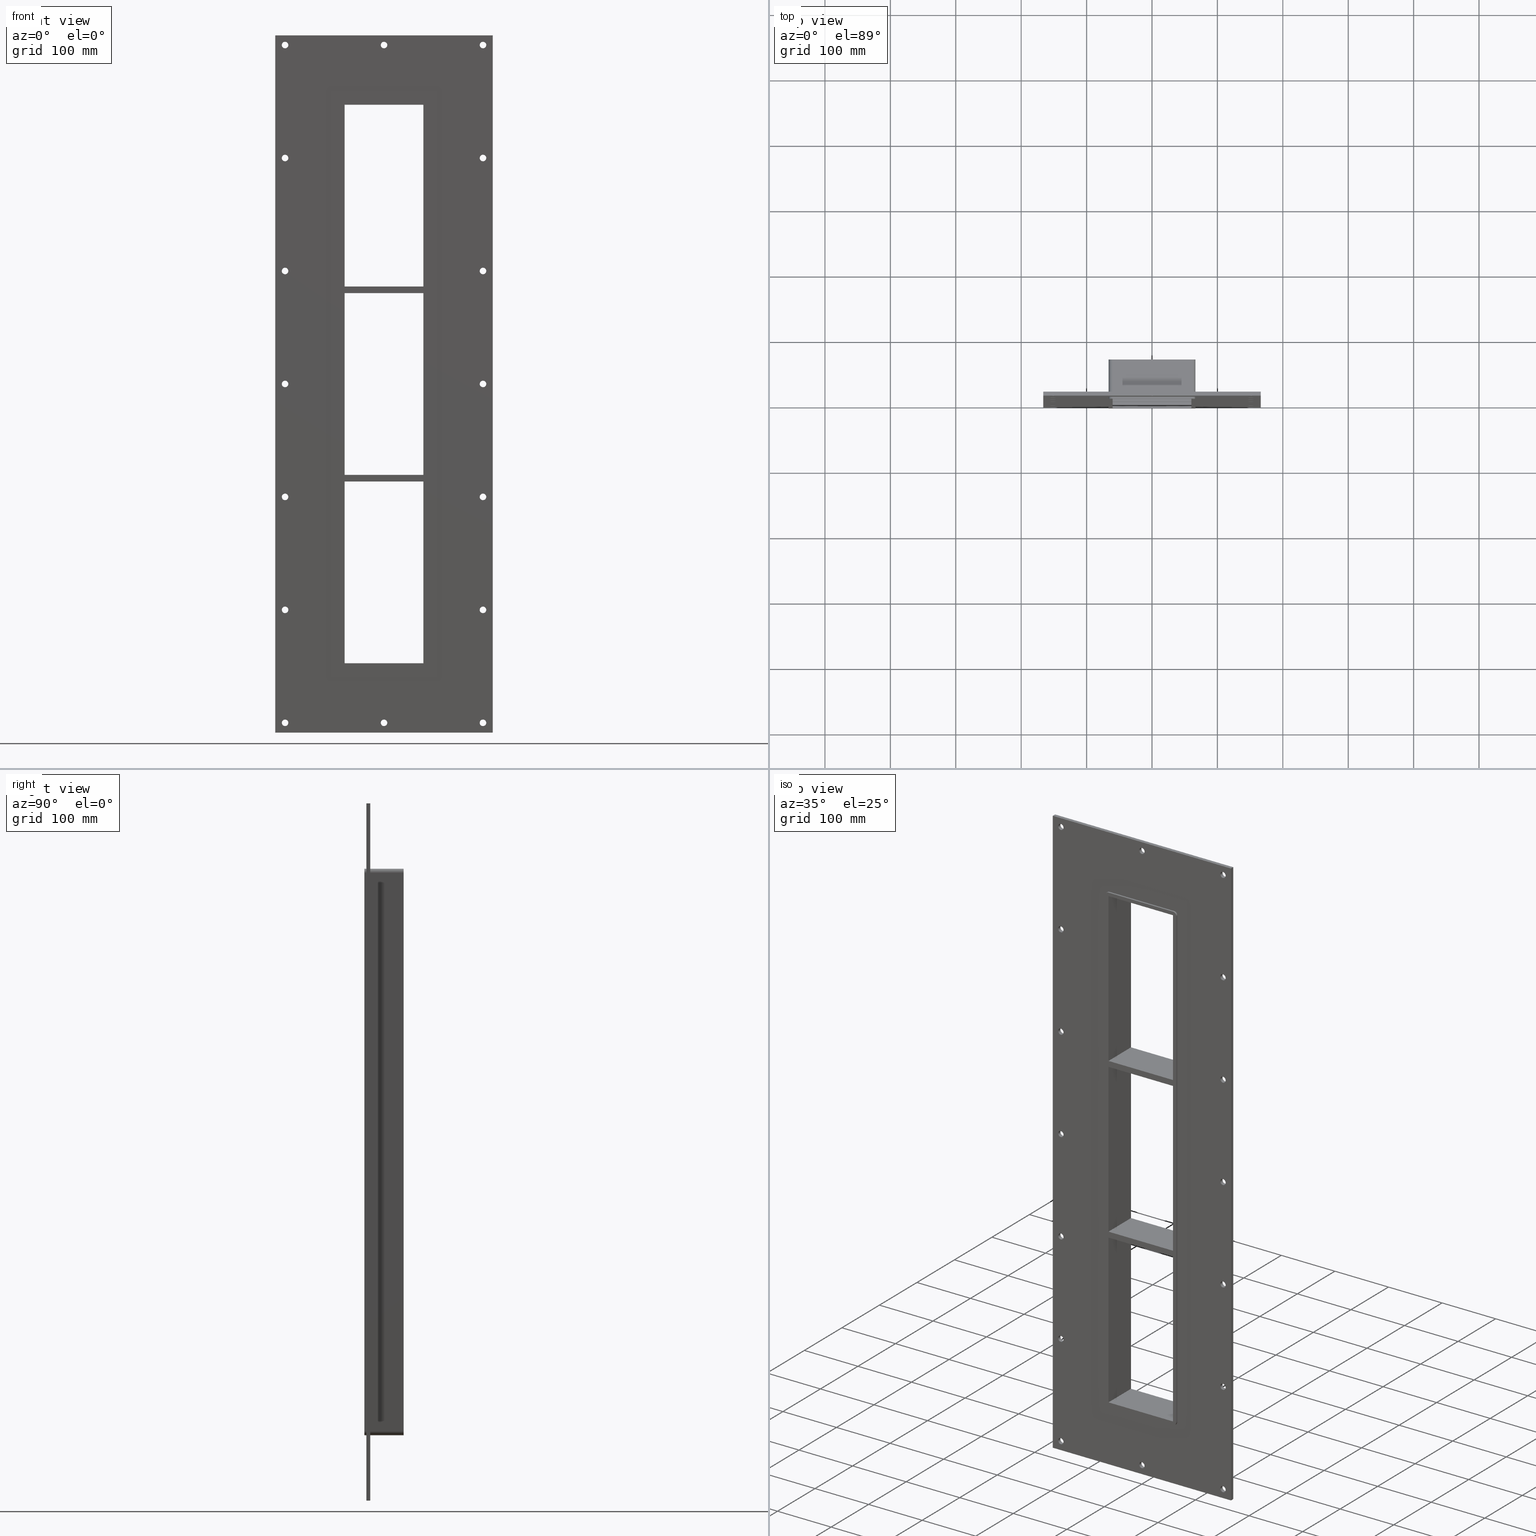
[diagram: canonical four-view strip — front | top / right | iso, engineering-drawing reading convention]
A machine part, canonical four-view strip (front | top / right | iso — engineering-drawing reading convention). The complete STEP part file that produces these views, byte-faithful:
ISO-10303-21;
HEADER;
/****************************************************************
 * Generated by software with PDElib inside                    *
 * PDElib Version v51a, created Wed 11/30/2011                  *
 * ITI Transcendata (http://www.transcendata.com/)              *
 ****************************************************************/
FILE_DESCRIPTION((''),'2;1');
FILE_NAME('C:\\RoxtecConfigurator\\CreatedFiles\\STEP\\GHFL1008+8+8X1.stp','2014-04-28T09:56:11',(''),(''),'Autodesk Inventor 2013','Autodesk Inventor 2013','');
FILE_SCHEMA(('AUTOMOTIVE_DESIGN { 1 0 10303 214 1 1 1 1 }'));
ENDSEC;
DATA;
#5=APPLICATION_CONTEXT('automotive design');
#6=APPLICATION_PROTOCOL_DEFINITION('International Standard','automotive_design',2001,#5);
#7=PRODUCT_CONTEXT('',#5,'mechanical');
#8=PRODUCT('GH FL100_ISO','GH FL100_ISO',$,(#7));
#9=PRODUCT_RELATED_PRODUCT_CATEGORY('part',$,(#8));
#10=PRODUCT_DEFINITION_FORMATION('',$,#8);
#11=PRODUCT_DEFINITION_CONTEXT('part definition',#5,'design');
#12=PRODUCT_DEFINITION('',$,#10,#11);
#18=(NAMED_UNIT(*)PLANE_ANGLE_UNIT()SI_UNIT($,.RADIAN.));
#19=DIMENSIONAL_EXPONENTS(0.0,0.0,0.0,0.0,0.0,0.0,0.0);
#20=PLANE_ANGLE_MEASURE_WITH_UNIT(PLANE_ANGLE_MEASURE(0.0174532925),#18);
#24=(CONVERSION_BASED_UNIT('DEGREE',#20)NAMED_UNIT(#19)PLANE_ANGLE_UNIT());
#28=(NAMED_UNIT(*)SI_UNIT($,.STERADIAN.)SOLID_ANGLE_UNIT());
#32=(LENGTH_UNIT()NAMED_UNIT(*)SI_UNIT(.MILLI.,.METRE.));
#34=UNCERTAINTY_MEASURE_WITH_UNIT(LENGTH_MEASURE(0.01),#32,'DISTANCE_ACCURACY_VALUE','');
#36=(GEOMETRIC_REPRESENTATION_CONTEXT(3)GLOBAL_UNCERTAINTY_ASSIGNED_CONTEXT((#34))GLOBAL_UNIT_ASSIGNED_CONTEXT((#24,#28,#32))REPRESENTATION_CONTEXT('None','None'));
#37=AXIS2_PLACEMENT_3D('',#38,#39,#40);
#38=CARTESIAN_POINT('',(0.0,0.0,0.0));
#39=DIRECTION('',(0.0,0.0,1.0));
#40=DIRECTION('',(1.0,0.0,0.0));
#41=SHAPE_REPRESENTATION('',(#37),#36);
#42=PRODUCT_DEFINITION_SHAPE('','',#12);
#43=SHAPE_DEFINITION_REPRESENTATION(#42,#41);
#49=(NAMED_UNIT(*)PLANE_ANGLE_UNIT()SI_UNIT($,.RADIAN.));
#50=DIMENSIONAL_EXPONENTS(0.0,0.0,0.0,0.0,0.0,0.0,0.0);
#51=PLANE_ANGLE_MEASURE_WITH_UNIT(PLANE_ANGLE_MEASURE(0.0174532925),#49);
#55=(CONVERSION_BASED_UNIT('DEGREE',#51)NAMED_UNIT(#50)PLANE_ANGLE_UNIT());
#59=(NAMED_UNIT(*)SI_UNIT($,.STERADIAN.)SOLID_ANGLE_UNIT());
#63=(LENGTH_UNIT()NAMED_UNIT(*)SI_UNIT(.MILLI.,.METRE.));
#65=UNCERTAINTY_MEASURE_WITH_UNIT(LENGTH_MEASURE(0.000001),#63,'DISTANCE_ACCURACY_VALUE','');
#67=(GEOMETRIC_REPRESENTATION_CONTEXT(3)GLOBAL_UNCERTAINTY_ASSIGNED_CONTEXT((#65))GLOBAL_UNIT_ASSIGNED_CONTEXT((#55,#59,#63))REPRESENTATION_CONTEXT('','3D'));
#68=CARTESIAN_POINT('',(-151.25000000000009,1118.2630504492224,-518.0));
#69=DIRECTION('',(0.0,-1.0,0.0));
#70=DIRECTION('',(1.0,0.0,0.0));
#71=AXIS2_PLACEMENT_3D('',#68,#69,#70);
#72=CYLINDRICAL_SURFACE('',#71,5.0);
#73=CARTESIAN_POINT('',(-156.25000000000009,5.999999999999943,-518.0));
#74=VERTEX_POINT('',#73);
#75=CARTESIAN_POINT('',(-151.25000000000009,5.999999999999943,-518.0));
#76=DIRECTION('',(0.0,-1.0,0.0));
#77=DIRECTION('',(1.0,0.0,0.0));
#78=AXIS2_PLACEMENT_3D('',#75,#76,#77);
#79=CIRCLE('',#78,5.0);
#80=EDGE_CURVE('',#74,#74,#79,.T.);
#81=ORIENTED_EDGE('',*,*,#80,.F.);
#82=EDGE_LOOP('',(#81));
#83=FACE_OUTER_BOUND('',#82,.T.);
#84=CARTESIAN_POINT('',(-146.25000000000009,0.0,-518.0));
#85=VERTEX_POINT('',#84);
#86=CARTESIAN_POINT('',(-151.25000000000009,0.0,-518.0));
#87=DIRECTION('',(0.0,1.0,0.0));
#88=DIRECTION('',(1.0,0.0,0.0));
#89=AXIS2_PLACEMENT_3D('',#86,#87,#88);
#90=CIRCLE('',#89,5.0);
#91=EDGE_CURVE('',#85,#85,#90,.T.);
#92=ORIENTED_EDGE('',*,*,#91,.F.);
#93=EDGE_LOOP('',(#92));
#94=FACE_BOUND('',#93,.T.);
#95=ADVANCED_FACE('',(#83,#94),#72,.F.);
#96=CARTESIAN_POINT('',(151.34999999999997,1118.2630504492224,-345.29999999999984));
#97=DIRECTION('',(0.0,-1.0,0.0));
#98=DIRECTION('',(1.0,0.0,0.0));
#99=AXIS2_PLACEMENT_3D('',#96,#97,#98);
#100=CYLINDRICAL_SURFACE('',#99,5.0);
#101=CARTESIAN_POINT('',(146.34999999999997,5.999999999999943,-345.29999999999984));
#102=VERTEX_POINT('',#101);
#103=CARTESIAN_POINT('',(151.34999999999997,5.999999999999943,-345.29999999999984));
#104=DIRECTION('',(0.0,-1.0,0.0));
#105=DIRECTION('',(1.0,0.0,0.0));
#106=AXIS2_PLACEMENT_3D('',#103,#104,#105);
#107=CIRCLE('',#106,5.0);
#108=EDGE_CURVE('',#102,#102,#107,.T.);
#109=ORIENTED_EDGE('',*,*,#108,.F.);
#110=EDGE_LOOP('',(#109));
#111=FACE_OUTER_BOUND('',#110,.T.);
#112=CARTESIAN_POINT('',(156.34999999999997,0.0,-345.29999999999984));
#113=VERTEX_POINT('',#112);
#114=CARTESIAN_POINT('',(151.34999999999997,0.0,-345.29999999999984));
#115=DIRECTION('',(0.0,1.0,0.0));
#116=DIRECTION('',(1.0,0.0,0.0));
#117=AXIS2_PLACEMENT_3D('',#114,#115,#116);
#118=CIRCLE('',#117,5.0);
#119=EDGE_CURVE('',#113,#113,#118,.T.);
#120=ORIENTED_EDGE('',*,*,#119,.F.);
#121=EDGE_LOOP('',(#120));
#122=FACE_BOUND('',#121,.T.);
#123=ADVANCED_FACE('',(#111,#122),#100,.F.);
#124=CARTESIAN_POINT('',(-151.25000000000009,1118.2630504492224,-345.29999999999984));
#125=DIRECTION('',(0.0,-1.0,0.0));
#126=DIRECTION('',(1.0,0.0,0.0));
#127=AXIS2_PLACEMENT_3D('',#124,#125,#126);
#128=CYLINDRICAL_SURFACE('',#127,5.0);
#129=CARTESIAN_POINT('',(-156.25000000000009,5.999999999999943,-345.29999999999984));
#130=VERTEX_POINT('',#129);
#131=CARTESIAN_POINT('',(-151.25000000000009,5.999999999999943,-345.29999999999984));
#132=DIRECTION('',(0.0,-1.0,0.0));
#133=DIRECTION('',(1.0,0.0,0.0));
#134=AXIS2_PLACEMENT_3D('',#131,#132,#133);
#135=CIRCLE('',#134,5.0);
#136=EDGE_CURVE('',#130,#130,#135,.T.);
#137=ORIENTED_EDGE('',*,*,#136,.F.);
#138=EDGE_LOOP('',(#137));
#139=FACE_OUTER_BOUND('',#138,.T.);
#140=CARTESIAN_POINT('',(-146.25000000000009,0.0,-345.29999999999984));
#141=VERTEX_POINT('',#140);
#142=CARTESIAN_POINT('',(-151.25000000000009,0.0,-345.29999999999984));
#143=DIRECTION('',(0.0,1.0,0.0));
#144=DIRECTION('',(1.0,0.0,0.0));
#145=AXIS2_PLACEMENT_3D('',#142,#143,#144);
#146=CIRCLE('',#145,5.0);
#147=EDGE_CURVE('',#141,#141,#146,.T.);
#148=ORIENTED_EDGE('',*,*,#147,.F.);
#149=EDGE_LOOP('',(#148));
#150=FACE_BOUND('',#149,.T.);
#151=ADVANCED_FACE('',(#139,#150),#128,.F.);
#152=CARTESIAN_POINT('',(151.34999999999997,1118.2630504492224,-172.59999999999994));
#153=DIRECTION('',(0.0,-1.0,0.0));
#154=DIRECTION('',(1.0,0.0,0.0));
#155=AXIS2_PLACEMENT_3D('',#152,#153,#154);
#156=CYLINDRICAL_SURFACE('',#155,5.0);
#157=CARTESIAN_POINT('',(146.34999999999997,5.999999999999943,-172.59999999999994));
#158=VERTEX_POINT('',#157);
#159=CARTESIAN_POINT('',(151.34999999999997,5.999999999999943,-172.59999999999994));
#160=DIRECTION('',(0.0,-1.0,0.0));
#161=DIRECTION('',(1.0,0.0,0.0));
#162=AXIS2_PLACEMENT_3D('',#159,#160,#161);
#163=CIRCLE('',#162,5.0);
#164=EDGE_CURVE('',#158,#158,#163,.T.);
#165=ORIENTED_EDGE('',*,*,#164,.F.);
#166=EDGE_LOOP('',(#165));
#167=FACE_OUTER_BOUND('',#166,.T.);
#168=CARTESIAN_POINT('',(156.34999999999997,0.0,-172.59999999999994));
#169=VERTEX_POINT('',#168);
#170=CARTESIAN_POINT('',(151.34999999999997,0.0,-172.59999999999994));
#171=DIRECTION('',(0.0,1.0,0.0));
#172=DIRECTION('',(1.0,0.0,0.0));
#173=AXIS2_PLACEMENT_3D('',#170,#171,#172);
#174=CIRCLE('',#173,5.0);
#175=EDGE_CURVE('',#169,#169,#174,.T.);
#176=ORIENTED_EDGE('',*,*,#175,.F.);
#177=EDGE_LOOP('',(#176));
#178=FACE_BOUND('',#177,.T.);
#179=ADVANCED_FACE('',(#167,#178),#156,.F.);
#180=CARTESIAN_POINT('',(-151.25000000000009,1118.2630504492224,-172.59999999999994));
#181=DIRECTION('',(0.0,-1.0,0.0));
#182=DIRECTION('',(1.0,0.0,0.0));
#183=AXIS2_PLACEMENT_3D('',#180,#181,#182);
#184=CYLINDRICAL_SURFACE('',#183,5.0);
#185=CARTESIAN_POINT('',(-156.25000000000009,5.999999999999943,-172.59999999999994));
#186=VERTEX_POINT('',#185);
#187=CARTESIAN_POINT('',(-151.25000000000009,5.999999999999943,-172.59999999999994));
#188=DIRECTION('',(0.0,-1.0,0.0));
#189=DIRECTION('',(1.0,0.0,0.0));
#190=AXIS2_PLACEMENT_3D('',#187,#188,#189);
#191=CIRCLE('',#190,5.0);
#192=EDGE_CURVE('',#186,#186,#191,.T.);
#193=ORIENTED_EDGE('',*,*,#192,.F.);
#194=EDGE_LOOP('',(#193));
#195=FACE_OUTER_BOUND('',#194,.T.);
#196=CARTESIAN_POINT('',(-146.25000000000009,0.0,-172.59999999999994));
#197=VERTEX_POINT('',#196);
#198=CARTESIAN_POINT('',(-151.25000000000009,0.0,-172.59999999999994));
#199=DIRECTION('',(0.0,1.0,0.0));
#200=DIRECTION('',(1.0,0.0,0.0));
#201=AXIS2_PLACEMENT_3D('',#198,#199,#200);
#202=CIRCLE('',#201,5.0);
#203=EDGE_CURVE('',#197,#197,#202,.T.);
#204=ORIENTED_EDGE('',*,*,#203,.F.);
#205=EDGE_LOOP('',(#204));
#206=FACE_BOUND('',#205,.T.);
#207=ADVANCED_FACE('',(#195,#206),#184,.F.);
#208=CARTESIAN_POINT('',(151.34999999999997,1118.2630504492224,0.100000000000016));
#209=DIRECTION('',(0.0,-1.0,0.0));
#210=DIRECTION('',(1.0,0.0,0.0));
#211=AXIS2_PLACEMENT_3D('',#208,#209,#210);
#212=CYLINDRICAL_SURFACE('',#211,5.0);
#213=CARTESIAN_POINT('',(146.34999999999997,5.999999999999943,0.100000000000016));
#214=VERTEX_POINT('',#213);
#215=CARTESIAN_POINT('',(151.34999999999997,5.999999999999943,0.100000000000016));
#216=DIRECTION('',(0.0,-1.0,0.0));
#217=DIRECTION('',(1.0,0.0,0.0));
#218=AXIS2_PLACEMENT_3D('',#215,#216,#217);
#219=CIRCLE('',#218,5.0);
#220=EDGE_CURVE('',#214,#214,#219,.T.);
#221=ORIENTED_EDGE('',*,*,#220,.F.);
#222=EDGE_LOOP('',(#221));
#223=FACE_OUTER_BOUND('',#222,.T.);
#224=CARTESIAN_POINT('',(156.34999999999997,0.0,0.100000000000016));
#225=VERTEX_POINT('',#224);
#226=CARTESIAN_POINT('',(151.34999999999997,0.0,0.100000000000016));
#227=DIRECTION('',(0.0,1.0,0.0));
#228=DIRECTION('',(1.0,0.0,0.0));
#229=AXIS2_PLACEMENT_3D('',#226,#227,#228);
#230=CIRCLE('',#229,5.0);
#231=EDGE_CURVE('',#225,#225,#230,.T.);
#232=ORIENTED_EDGE('',*,*,#231,.F.);
#233=EDGE_LOOP('',(#232));
#234=FACE_BOUND('',#233,.T.);
#235=ADVANCED_FACE('',(#223,#234),#212,.F.);
#236=CARTESIAN_POINT('',(-151.25000000000009,1118.2630504492224,0.100000000000016));
#237=DIRECTION('',(0.0,-1.0,0.0));
#238=DIRECTION('',(1.0,0.0,0.0));
#239=AXIS2_PLACEMENT_3D('',#236,#237,#238);
#240=CYLINDRICAL_SURFACE('',#239,5.0);
#241=CARTESIAN_POINT('',(-156.25000000000009,5.999999999999943,0.100000000000016));
#242=VERTEX_POINT('',#241);
#243=CARTESIAN_POINT('',(-151.25000000000009,5.999999999999943,0.100000000000016));
#244=DIRECTION('',(0.0,-1.0,0.0));
#245=DIRECTION('',(1.0,0.0,0.0));
#246=AXIS2_PLACEMENT_3D('',#243,#244,#245);
#247=CIRCLE('',#246,5.0);
#248=EDGE_CURVE('',#242,#242,#247,.T.);
#249=ORIENTED_EDGE('',*,*,#248,.F.);
#250=EDGE_LOOP('',(#249));
#251=FACE_OUTER_BOUND('',#250,.T.);
#252=CARTESIAN_POINT('',(-146.25000000000009,0.0,0.100000000000016));
#253=VERTEX_POINT('',#252);
#254=CARTESIAN_POINT('',(-151.25000000000009,0.0,0.100000000000016));
#255=DIRECTION('',(0.0,1.0,0.0));
#256=DIRECTION('',(1.0,0.0,0.0));
#257=AXIS2_PLACEMENT_3D('',#254,#255,#256);
#258=CIRCLE('',#257,5.0);
#259=EDGE_CURVE('',#253,#253,#258,.T.);
#260=ORIENTED_EDGE('',*,*,#259,.F.);
#261=EDGE_LOOP('',(#260));
#262=FACE_BOUND('',#261,.T.);
#263=ADVANCED_FACE('',(#251,#262),#240,.F.);
#264=CARTESIAN_POINT('',(151.34999999999997,1118.2630504492224,172.80000000000013));
#265=DIRECTION('',(0.0,-1.0,0.0));
#266=DIRECTION('',(1.0,0.0,0.0));
#267=AXIS2_PLACEMENT_3D('',#264,#265,#266);
#268=CYLINDRICAL_SURFACE('',#267,5.0);
#269=CARTESIAN_POINT('',(146.34999999999997,5.999999999999943,172.80000000000013));
#270=VERTEX_POINT('',#269);
#271=CARTESIAN_POINT('',(151.34999999999997,5.999999999999943,172.80000000000013));
#272=DIRECTION('',(0.0,-1.0,0.0));
#273=DIRECTION('',(1.0,0.0,0.0));
#274=AXIS2_PLACEMENT_3D('',#271,#272,#273);
#275=CIRCLE('',#274,5.0);
#276=EDGE_CURVE('',#270,#270,#275,.T.);
#277=ORIENTED_EDGE('',*,*,#276,.F.);
#278=EDGE_LOOP('',(#277));
#279=FACE_OUTER_BOUND('',#278,.T.);
#280=CARTESIAN_POINT('',(156.34999999999997,0.0,172.80000000000013));
#281=VERTEX_POINT('',#280);
#282=CARTESIAN_POINT('',(151.34999999999997,0.0,172.80000000000013));
#283=DIRECTION('',(0.0,1.0,0.0));
#284=DIRECTION('',(1.0,0.0,0.0));
#285=AXIS2_PLACEMENT_3D('',#282,#283,#284);
#286=CIRCLE('',#285,5.0);
#287=EDGE_CURVE('',#281,#281,#286,.T.);
#288=ORIENTED_EDGE('',*,*,#287,.F.);
#289=EDGE_LOOP('',(#288));
#290=FACE_BOUND('',#289,.T.);
#291=ADVANCED_FACE('',(#279,#290),#268,.F.);
#292=CARTESIAN_POINT('',(-151.25000000000009,1118.2630504492224,172.80000000000013));
#293=DIRECTION('',(0.0,-1.0,0.0));
#294=DIRECTION('',(1.0,0.0,0.0));
#295=AXIS2_PLACEMENT_3D('',#292,#293,#294);
#296=CYLINDRICAL_SURFACE('',#295,5.0);
#297=CARTESIAN_POINT('',(-156.25000000000009,5.999999999999943,172.80000000000013));
#298=VERTEX_POINT('',#297);
#299=CARTESIAN_POINT('',(-151.25000000000009,5.999999999999943,172.80000000000013));
#300=DIRECTION('',(0.0,-1.0,0.0));
#301=DIRECTION('',(1.0,0.0,0.0));
#302=AXIS2_PLACEMENT_3D('',#299,#300,#301);
#303=CIRCLE('',#302,5.0);
#304=EDGE_CURVE('',#298,#298,#303,.T.);
#305=ORIENTED_EDGE('',*,*,#304,.F.);
#306=EDGE_LOOP('',(#305));
#307=FACE_OUTER_BOUND('',#306,.T.);
#308=CARTESIAN_POINT('',(-146.25000000000009,0.0,172.80000000000013));
#309=VERTEX_POINT('',#308);
#310=CARTESIAN_POINT('',(-151.25000000000009,0.0,172.80000000000013));
#311=DIRECTION('',(0.0,1.0,0.0));
#312=DIRECTION('',(1.0,0.0,0.0));
#313=AXIS2_PLACEMENT_3D('',#310,#311,#312);
#314=CIRCLE('',#313,5.0);
#315=EDGE_CURVE('',#309,#309,#314,.T.);
#316=ORIENTED_EDGE('',*,*,#315,.F.);
#317=EDGE_LOOP('',(#316));
#318=FACE_BOUND('',#317,.T.);
#319=ADVANCED_FACE('',(#307,#318),#296,.F.);
#320=CARTESIAN_POINT('',(151.34999999999997,1118.2630504492224,345.50000000000011));
#321=DIRECTION('',(0.0,-1.0,0.0));
#322=DIRECTION('',(1.0,0.0,0.0));
#323=AXIS2_PLACEMENT_3D('',#320,#321,#322);
#324=CYLINDRICAL_SURFACE('',#323,5.0);
#325=CARTESIAN_POINT('',(146.34999999999997,5.999999999999943,345.50000000000011));
#326=VERTEX_POINT('',#325);
#327=CARTESIAN_POINT('',(151.34999999999997,5.999999999999943,345.50000000000011));
#328=DIRECTION('',(0.0,-1.0,0.0));
#329=DIRECTION('',(1.0,0.0,0.0));
#330=AXIS2_PLACEMENT_3D('',#327,#328,#329);
#331=CIRCLE('',#330,5.0);
#332=EDGE_CURVE('',#326,#326,#331,.T.);
#333=ORIENTED_EDGE('',*,*,#332,.F.);
#334=EDGE_LOOP('',(#333));
#335=FACE_OUTER_BOUND('',#334,.T.);
#336=CARTESIAN_POINT('',(156.34999999999997,0.0,345.50000000000011));
#337=VERTEX_POINT('',#336);
#338=CARTESIAN_POINT('',(151.34999999999997,0.0,345.50000000000011));
#339=DIRECTION('',(0.0,1.0,0.0));
#340=DIRECTION('',(1.0,0.0,0.0));
#341=AXIS2_PLACEMENT_3D('',#338,#339,#340);
#342=CIRCLE('',#341,5.0);
#343=EDGE_CURVE('',#337,#337,#342,.T.);
#344=ORIENTED_EDGE('',*,*,#343,.F.);
#345=EDGE_LOOP('',(#344));
#346=FACE_BOUND('',#345,.T.);
#347=ADVANCED_FACE('',(#335,#346),#324,.F.);
#348=CARTESIAN_POINT('',(-151.25000000000009,1118.2630504492224,345.50000000000011));
#349=DIRECTION('',(0.0,-1.0,0.0));
#350=DIRECTION('',(1.0,0.0,0.0));
#351=AXIS2_PLACEMENT_3D('',#348,#349,#350);
#352=CYLINDRICAL_SURFACE('',#351,5.0);
#353=CARTESIAN_POINT('',(-156.25000000000009,5.999999999999943,345.50000000000011));
#354=VERTEX_POINT('',#353);
#355=CARTESIAN_POINT('',(-151.25000000000009,5.999999999999943,345.50000000000011));
#356=DIRECTION('',(0.0,-1.0,0.0));
#357=DIRECTION('',(1.0,0.0,0.0));
#358=AXIS2_PLACEMENT_3D('',#355,#356,#357);
#359=CIRCLE('',#358,5.0);
#360=EDGE_CURVE('',#354,#354,#359,.T.);
#361=ORIENTED_EDGE('',*,*,#360,.F.);
#362=EDGE_LOOP('',(#361));
#363=FACE_OUTER_BOUND('',#362,.T.);
#364=CARTESIAN_POINT('',(-146.25000000000009,0.0,345.50000000000011));
#365=VERTEX_POINT('',#364);
#366=CARTESIAN_POINT('',(-151.25000000000009,0.0,345.50000000000011));
#367=DIRECTION('',(0.0,1.0,0.0));
#368=DIRECTION('',(1.0,0.0,0.0));
#369=AXIS2_PLACEMENT_3D('',#366,#367,#368);
#370=CIRCLE('',#369,5.0);
#371=EDGE_CURVE('',#365,#365,#370,.T.);
#372=ORIENTED_EDGE('',*,*,#371,.F.);
#373=EDGE_LOOP('',(#372));
#374=FACE_BOUND('',#373,.T.);
#375=ADVANCED_FACE('',(#363,#374),#352,.F.);
#376=CARTESIAN_POINT('',(0.049999999999937,1118.2630504492224,518.20000000000005));
#377=DIRECTION('',(0.0,-1.0,0.0));
#378=DIRECTION('',(1.0,0.0,0.0));
#379=AXIS2_PLACEMENT_3D('',#376,#377,#378);
#380=CYLINDRICAL_SURFACE('',#379,5.0);
#381=CARTESIAN_POINT('',(-4.950000000000063,5.999999999999943,518.20000000000005));
#382=VERTEX_POINT('',#381);
#383=CARTESIAN_POINT('',(0.049999999999937,5.999999999999943,518.20000000000005));
#384=DIRECTION('',(0.0,-1.0,0.0));
#385=DIRECTION('',(1.0,0.0,0.0));
#386=AXIS2_PLACEMENT_3D('',#383,#384,#385);
#387=CIRCLE('',#386,5.0);
#388=EDGE_CURVE('',#382,#382,#387,.T.);
#389=ORIENTED_EDGE('',*,*,#388,.F.);
#390=EDGE_LOOP('',(#389));
#391=FACE_OUTER_BOUND('',#390,.T.);
#392=CARTESIAN_POINT('',(5.049999999999937,0.0,518.20000000000005));
#393=VERTEX_POINT('',#392);
#394=CARTESIAN_POINT('',(0.049999999999937,0.0,518.20000000000005));
#395=DIRECTION('',(0.0,1.0,0.0));
#396=DIRECTION('',(1.0,0.0,0.0));
#397=AXIS2_PLACEMENT_3D('',#394,#395,#396);
#398=CIRCLE('',#397,5.0);
#399=EDGE_CURVE('',#393,#393,#398,.T.);
#400=ORIENTED_EDGE('',*,*,#399,.F.);
#401=EDGE_LOOP('',(#400));
#402=FACE_BOUND('',#401,.T.);
#403=ADVANCED_FACE('',(#391,#402),#380,.F.);
#404=CARTESIAN_POINT('',(0.049999999999937,1118.2630504492224,-518.0));
#405=DIRECTION('',(0.0,-1.0,0.0));
#406=DIRECTION('',(1.0,0.0,0.0));
#407=AXIS2_PLACEMENT_3D('',#404,#405,#406);
#408=CYLINDRICAL_SURFACE('',#407,5.0);
#409=CARTESIAN_POINT('',(-4.950000000000063,5.999999999999943,-518.0));
#410=VERTEX_POINT('',#409);
#411=CARTESIAN_POINT('',(0.049999999999937,5.999999999999943,-518.0));
#412=DIRECTION('',(0.0,-1.0,0.0));
#413=DIRECTION('',(1.0,0.0,0.0));
#414=AXIS2_PLACEMENT_3D('',#411,#412,#413);
#415=CIRCLE('',#414,5.0);
#416=EDGE_CURVE('',#410,#410,#415,.T.);
#417=ORIENTED_EDGE('',*,*,#416,.F.);
#418=EDGE_LOOP('',(#417));
#419=FACE_OUTER_BOUND('',#418,.T.);
#420=CARTESIAN_POINT('',(5.049999999999937,0.0,-518.0));
#421=VERTEX_POINT('',#420);
#422=CARTESIAN_POINT('',(0.049999999999937,0.0,-518.0));
#423=DIRECTION('',(0.0,1.0,0.0));
#424=DIRECTION('',(1.0,0.0,0.0));
#425=AXIS2_PLACEMENT_3D('',#422,#423,#424);
#426=CIRCLE('',#425,5.0);
#427=EDGE_CURVE('',#421,#421,#426,.T.);
#428=ORIENTED_EDGE('',*,*,#427,.F.);
#429=EDGE_LOOP('',(#428));
#430=FACE_BOUND('',#429,.T.);
#431=ADVANCED_FACE('',(#419,#430),#408,.F.);
#432=CARTESIAN_POINT('',(151.34999999999997,1118.2630504492224,-518.0));
#433=DIRECTION('',(0.0,-1.0,0.0));
#434=DIRECTION('',(1.0,0.0,0.0));
#435=AXIS2_PLACEMENT_3D('',#432,#433,#434);
#436=CYLINDRICAL_SURFACE('',#435,5.0);
#437=CARTESIAN_POINT('',(146.34999999999997,5.999999999999943,-518.0));
#438=VERTEX_POINT('',#437);
#439=CARTESIAN_POINT('',(151.34999999999997,5.999999999999943,-518.0));
#440=DIRECTION('',(0.0,-1.0,0.0));
#441=DIRECTION('',(1.0,0.0,0.0));
#442=AXIS2_PLACEMENT_3D('',#439,#440,#441);
#443=CIRCLE('',#442,5.0);
#444=EDGE_CURVE('',#438,#438,#443,.T.);
#445=ORIENTED_EDGE('',*,*,#444,.F.);
#446=EDGE_LOOP('',(#445));
#447=FACE_OUTER_BOUND('',#446,.T.);
#448=CARTESIAN_POINT('',(156.34999999999997,0.0,-518.0));
#449=VERTEX_POINT('',#448);
#450=CARTESIAN_POINT('',(151.34999999999997,0.0,-518.0));
#451=DIRECTION('',(0.0,1.0,0.0));
#452=DIRECTION('',(1.0,0.0,0.0));
#453=AXIS2_PLACEMENT_3D('',#450,#451,#452);
#454=CIRCLE('',#453,5.0);
#455=EDGE_CURVE('',#449,#449,#454,.T.);
#456=ORIENTED_EDGE('',*,*,#455,.F.);
#457=EDGE_LOOP('',(#456));
#458=FACE_BOUND('',#457,.T.);
#459=ADVANCED_FACE('',(#447,#458),#436,.F.);
#460=CARTESIAN_POINT('',(-151.25000000000009,1118.2630504492224,518.20000000000005));
#461=DIRECTION('',(0.0,-1.0,0.0));
#462=DIRECTION('',(1.0,0.0,0.0));
#463=AXIS2_PLACEMENT_3D('',#460,#461,#462);
#464=CYLINDRICAL_SURFACE('',#463,5.0);
#465=CARTESIAN_POINT('',(-156.25000000000009,5.999999999999943,518.20000000000005));
#466=VERTEX_POINT('',#465);
#467=CARTESIAN_POINT('',(-151.25000000000009,5.999999999999943,518.20000000000005));
#468=DIRECTION('',(0.0,-1.0,0.0));
#469=DIRECTION('',(1.0,0.0,0.0));
#470=AXIS2_PLACEMENT_3D('',#467,#468,#469);
#471=CIRCLE('',#470,5.0);
#472=EDGE_CURVE('',#466,#466,#471,.T.);
#473=ORIENTED_EDGE('',*,*,#472,.F.);
#474=EDGE_LOOP('',(#473));
#475=FACE_OUTER_BOUND('',#474,.T.);
#476=CARTESIAN_POINT('',(-146.25000000000009,0.0,518.20000000000005));
#477=VERTEX_POINT('',#476);
#478=CARTESIAN_POINT('',(-151.25000000000009,0.0,518.20000000000005));
#479=DIRECTION('',(0.0,1.0,0.0));
#480=DIRECTION('',(1.0,0.0,0.0));
#481=AXIS2_PLACEMENT_3D('',#478,#479,#480);
#482=CIRCLE('',#481,5.0);
#483=EDGE_CURVE('',#477,#477,#482,.T.);
#484=ORIENTED_EDGE('',*,*,#483,.F.);
#485=EDGE_LOOP('',(#484));
#486=FACE_BOUND('',#485,.T.);
#487=ADVANCED_FACE('',(#475,#486),#464,.F.);
#488=CARTESIAN_POINT('',(151.34999999999997,1118.2630504492224,518.20000000000005));
#489=DIRECTION('',(0.0,-1.0,0.0));
#490=DIRECTION('',(1.0,0.0,0.0));
#491=AXIS2_PLACEMENT_3D('',#488,#489,#490);
#492=CYLINDRICAL_SURFACE('',#491,5.0);
#493=CARTESIAN_POINT('',(146.34999999999997,5.999999999999943,518.20000000000005));
#494=VERTEX_POINT('',#493);
#495=CARTESIAN_POINT('',(151.34999999999997,5.999999999999943,518.20000000000005));
#496=DIRECTION('',(0.0,-1.0,0.0));
#497=DIRECTION('',(1.0,0.0,0.0));
#498=AXIS2_PLACEMENT_3D('',#495,#496,#497);
#499=CIRCLE('',#498,5.0);
#500=EDGE_CURVE('',#494,#494,#499,.T.);
#501=ORIENTED_EDGE('',*,*,#500,.F.);
#502=EDGE_LOOP('',(#501));
#503=FACE_OUTER_BOUND('',#502,.T.);
#504=CARTESIAN_POINT('',(156.34999999999997,0.0,518.20000000000005));
#505=VERTEX_POINT('',#504);
#506=CARTESIAN_POINT('',(151.34999999999997,0.0,518.20000000000005));
#507=DIRECTION('',(0.0,1.0,0.0));
#508=DIRECTION('',(1.0,0.0,0.0));
#509=AXIS2_PLACEMENT_3D('',#506,#507,#508);
#510=CIRCLE('',#509,5.0);
#511=EDGE_CURVE('',#505,#505,#510,.T.);
#512=ORIENTED_EDGE('',*,*,#511,.F.);
#513=EDGE_LOOP('',(#512));
#514=FACE_BOUND('',#513,.T.);
#515=ADVANCED_FACE('',(#503,#514),#492,.F.);
#516=CARTESIAN_POINT('',(60.249999999996362,-3.0,138.99999999999073));
#517=DIRECTION('',(0.0,0.0,-1.0));
#518=DIRECTION('',(-1.0,0.0,0.0));
#519=AXIS2_PLACEMENT_3D('',#516,#517,#518);
#520=PLANE('',#519);
#521=CARTESIAN_POINT('',(60.249999999996362,-3.0,138.99999999999073));
#522=VERTEX_POINT('',#521);
#523=CARTESIAN_POINT('',(-60.249999999999687,-3.0,138.99999999999056));
#524=VERTEX_POINT('',#523);
#525=CARTESIAN_POINT('',(60.249999999996362,-3.0,138.99999999999073));
#526=DIRECTION('',(-1.0,0.0,0.0));
#527=VECTOR('',#526,120.49999999999605);
#528=LINE('',#525,#527);
#529=EDGE_CURVE('',#522,#524,#528,.T.);
#530=ORIENTED_EDGE('',*,*,#529,.T.);
#531=CARTESIAN_POINT('',(-60.249999999999687,57.0,138.99999999999056));
#532=VERTEX_POINT('',#531);
#533=CARTESIAN_POINT('',(-60.25,57.000000000000007,138.99999999999062));
#534=DIRECTION('',(0.0,-1.0,0.0));
#535=VECTOR('',#534,60.000000000000007);
#536=LINE('',#533,#535);
#537=EDGE_CURVE('',#532,#524,#536,.T.);
#538=ORIENTED_EDGE('',*,*,#537,.F.);
#539=CARTESIAN_POINT('',(60.249999999996369,57.0,138.99999999999073));
#540=VERTEX_POINT('',#539);
#541=CARTESIAN_POINT('',(60.249999999996362,57.0,138.99999999999073));
#542=DIRECTION('',(-1.0,0.0,0.0));
#543=VECTOR('',#542,120.49999999999605);
#544=LINE('',#541,#543);
#545=EDGE_CURVE('',#540,#532,#544,.T.);
#546=ORIENTED_EDGE('',*,*,#545,.F.);
#547=CARTESIAN_POINT('',(60.25,-3.0,138.99999999999073));
#548=DIRECTION('',(0.0,1.0,0.0));
#549=VECTOR('',#548,60.000000000000007);
#550=LINE('',#547,#549);
#551=EDGE_CURVE('',#522,#540,#550,.T.);
#552=ORIENTED_EDGE('',*,*,#551,.F.);
#553=EDGE_LOOP('',(#530,#538,#546,#552));
#554=FACE_OUTER_BOUND('',#553,.T.);
#555=ADVANCED_FACE('',(#554),#520,.T.);
#556=CARTESIAN_POINT('',(-60.249999999999694,-3.0,148.99999999999994));
#557=DIRECTION('',(0.0,0.0,1.0));
#558=DIRECTION('',(1.0,0.0,0.0));
#559=AXIS2_PLACEMENT_3D('',#556,#557,#558);
#560=PLANE('',#559);
#561=CARTESIAN_POINT('',(-60.249999999999694,-3.0,148.99999999999994));
#562=VERTEX_POINT('',#561);
#563=CARTESIAN_POINT('',(60.249999999999915,-3.0,148.99999999999994));
#564=VERTEX_POINT('',#563);
#565=CARTESIAN_POINT('',(-60.249999999999694,-3.0,148.99999999999994));
#566=DIRECTION('',(1.0,0.0,0.0));
#567=VECTOR('',#566,120.49999999999962);
#568=LINE('',#565,#567);
#569=EDGE_CURVE('',#562,#564,#568,.T.);
#570=ORIENTED_EDGE('',*,*,#569,.T.);
#571=CARTESIAN_POINT('',(60.249999999999922,57.0,148.99999999999994));
#572=VERTEX_POINT('',#571);
#573=CARTESIAN_POINT('',(60.25,57.000000000000007,148.99999999999994));
#574=DIRECTION('',(0.0,-1.0,0.0));
#575=VECTOR('',#574,60.000000000000007);
#576=LINE('',#573,#575);
#577=EDGE_CURVE('',#572,#564,#576,.T.);
#578=ORIENTED_EDGE('',*,*,#577,.F.);
#579=CARTESIAN_POINT('',(-60.249999999999694,57.0,148.99999999999994));
#580=VERTEX_POINT('',#579);
#581=CARTESIAN_POINT('',(-60.249999999999694,57.0,148.99999999999994));
#582=DIRECTION('',(1.0,0.0,0.0));
#583=VECTOR('',#582,120.49999999999962);
#584=LINE('',#581,#583);
#585=EDGE_CURVE('',#580,#572,#584,.T.);
#586=ORIENTED_EDGE('',*,*,#585,.F.);
#587=CARTESIAN_POINT('',(-60.25,-3.0,148.99999999999994));
#588=DIRECTION('',(0.0,1.0,0.0));
#589=VECTOR('',#588,60.000000000000007);
#590=LINE('',#587,#589);
#591=EDGE_CURVE('',#562,#580,#590,.T.);
#592=ORIENTED_EDGE('',*,*,#591,.F.);
#593=EDGE_LOOP('',(#570,#578,#586,#592));
#594=FACE_OUTER_BOUND('',#593,.T.);
#595=ADVANCED_FACE('',(#594),#560,.T.);
#596=CARTESIAN_POINT('',(-60.25,0.0,-427.0));
#597=DIRECTION('',(-1.0,0.0,0.0));
#598=DIRECTION('',(0.0,0.0,1.0));
#599=AXIS2_PLACEMENT_3D('',#596,#597,#598);
#600=PLANE('',#599);
#601=ORIENTED_EDGE('',*,*,#591,.T.);
#602=CARTESIAN_POINT('',(-60.25,57.0,427.0));
#603=VERTEX_POINT('',#602);
#604=CARTESIAN_POINT('',(-60.25,57.0,427.0));
#605=DIRECTION('',(0.0,0.0,-1.0));
#606=VECTOR('',#605,278.0);
#607=LINE('',#604,#606);
#608=EDGE_CURVE('',#603,#580,#607,.T.);
#609=ORIENTED_EDGE('',*,*,#608,.F.);
#610=CARTESIAN_POINT('',(-60.25,-3.0,427.0));
#611=VERTEX_POINT('',#610);
#612=CARTESIAN_POINT('',(-60.25,-3.0,427.0));
#613=DIRECTION('',(0.0,1.0,0.0));
#614=VECTOR('',#613,60.0);
#615=LINE('',#612,#614);
#616=EDGE_CURVE('',#611,#603,#615,.T.);
#617=ORIENTED_EDGE('',*,*,#616,.F.);
#618=CARTESIAN_POINT('',(-60.25,-3.0,148.99999999999997));
#619=DIRECTION('',(0.0,0.0,1.0));
#620=VECTOR('',#619,278.0);
#621=LINE('',#618,#620);
#622=EDGE_CURVE('',#562,#611,#621,.T.);
#623=ORIENTED_EDGE('',*,*,#622,.F.);
#624=EDGE_LOOP('',(#601,#609,#617,#623));
#625=FACE_OUTER_BOUND('',#624,.T.);
#626=ADVANCED_FACE('',(#625),#600,.F.);
#627=CARTESIAN_POINT('',(60.25,0.0,427.0));
#628=DIRECTION('',(1.0,0.0,0.0));
#629=DIRECTION('',(0.0,0.0,-1.0));
#630=AXIS2_PLACEMENT_3D('',#627,#628,#629);
#631=PLANE('',#630);
#632=ORIENTED_EDGE('',*,*,#551,.T.);
#633=CARTESIAN_POINT('',(60.249999999999922,57.0,-139.00000000000006));
#634=VERTEX_POINT('',#633);
#635=CARTESIAN_POINT('',(60.25,57.0,-139.00000000000006));
#636=DIRECTION('',(0.0,0.0,1.0));
#637=VECTOR('',#636,277.99999999999079);
#638=LINE('',#635,#637);
#639=EDGE_CURVE('',#634,#540,#638,.T.);
#640=ORIENTED_EDGE('',*,*,#639,.F.);
#641=CARTESIAN_POINT('',(60.249999999999915,-3.0,-139.00000000000006));
#642=VERTEX_POINT('',#641);
#643=CARTESIAN_POINT('',(60.25,57.000000000000007,-139.00000000000006));
#644=DIRECTION('',(0.0,-1.0,0.0));
#645=VECTOR('',#644,60.000000000000007);
#646=LINE('',#643,#645);
#647=EDGE_CURVE('',#634,#642,#646,.T.);
#648=ORIENTED_EDGE('',*,*,#647,.T.);
#649=CARTESIAN_POINT('',(60.25,-3.0,138.99999999999073));
#650=DIRECTION('',(0.0,0.0,-1.0));
#651=VECTOR('',#650,277.99999999999079);
#652=LINE('',#649,#651);
#653=EDGE_CURVE('',#522,#642,#652,.T.);
#654=ORIENTED_EDGE('',*,*,#653,.F.);
#655=EDGE_LOOP('',(#632,#640,#648,#654));
#656=FACE_OUTER_BOUND('',#655,.T.);
#657=ADVANCED_FACE('',(#656),#631,.F.);
#658=CARTESIAN_POINT('',(60.25,0.0,427.0));
#659=DIRECTION('',(1.0,0.0,0.0));
#660=DIRECTION('',(0.0,0.0,-1.0));
#661=AXIS2_PLACEMENT_3D('',#658,#659,#660);
#662=PLANE('',#661);
#663=ORIENTED_EDGE('',*,*,#577,.T.);
#664=CARTESIAN_POINT('',(60.25,-3.0,427.0));
#665=VERTEX_POINT('',#664);
#666=CARTESIAN_POINT('',(60.25,-3.0,427.0));
#667=DIRECTION('',(0.0,0.0,-1.0));
#668=VECTOR('',#667,278.00000000000006);
#669=LINE('',#666,#668);
#670=EDGE_CURVE('',#665,#564,#669,.T.);
#671=ORIENTED_EDGE('',*,*,#670,.F.);
#672=CARTESIAN_POINT('',(60.25,57.0,427.0));
#673=VERTEX_POINT('',#672);
#674=CARTESIAN_POINT('',(60.25,-3.0,427.0));
#675=DIRECTION('',(0.0,1.0,0.0));
#676=VECTOR('',#675,60.0);
#677=LINE('',#674,#676);
#678=EDGE_CURVE('',#665,#673,#677,.T.);
#679=ORIENTED_EDGE('',*,*,#678,.T.);
#680=CARTESIAN_POINT('',(60.25,57.0,148.99999999999994));
#681=DIRECTION('',(0.0,0.0,1.0));
#682=VECTOR('',#681,278.00000000000006);
#683=LINE('',#680,#682);
#684=EDGE_CURVE('',#572,#673,#683,.T.);
#685=ORIENTED_EDGE('',*,*,#684,.F.);
#686=EDGE_LOOP('',(#663,#671,#679,#685));
#687=FACE_OUTER_BOUND('',#686,.T.);
#688=ADVANCED_FACE('',(#687),#662,.F.);
#689=CARTESIAN_POINT('',(60.249999999996362,-3.0,-149.00000000000927));
#690=DIRECTION('',(0.0,0.0,-1.0));
#691=DIRECTION('',(-1.0,0.0,0.0));
#692=AXIS2_PLACEMENT_3D('',#689,#690,#691);
#693=PLANE('',#692);
#694=CARTESIAN_POINT('',(60.249999999996362,-3.0,-149.00000000000927));
#695=VERTEX_POINT('',#694);
#696=CARTESIAN_POINT('',(-60.249999999999687,-3.0,-149.00000000000944));
#697=VERTEX_POINT('',#696);
#698=CARTESIAN_POINT('',(60.249999999996362,-3.0,-149.00000000000927));
#699=DIRECTION('',(-1.0,0.0,0.0));
#700=VECTOR('',#699,120.49999999999605);
#701=LINE('',#698,#700);
#702=EDGE_CURVE('',#695,#697,#701,.T.);
#703=ORIENTED_EDGE('',*,*,#702,.T.);
#704=CARTESIAN_POINT('',(-60.249999999999687,57.0,-149.00000000000944));
#705=VERTEX_POINT('',#704);
#706=CARTESIAN_POINT('',(-60.25,57.000000000000007,-149.00000000000946));
#707=DIRECTION('',(0.0,-1.0,0.0));
#708=VECTOR('',#707,60.000000000000007);
#709=LINE('',#706,#708);
#710=EDGE_CURVE('',#705,#697,#709,.T.);
#711=ORIENTED_EDGE('',*,*,#710,.F.);
#712=CARTESIAN_POINT('',(60.249999999996369,57.0,-149.00000000000927));
#713=VERTEX_POINT('',#712);
#714=CARTESIAN_POINT('',(60.249999999996362,57.0,-149.00000000000927));
#715=DIRECTION('',(-1.0,0.0,0.0));
#716=VECTOR('',#715,120.49999999999605);
#717=LINE('',#714,#716);
#718=EDGE_CURVE('',#713,#705,#717,.T.);
#719=ORIENTED_EDGE('',*,*,#718,.F.);
#720=CARTESIAN_POINT('',(60.25,-3.0,-149.00000000000929));
#721=DIRECTION('',(0.0,1.0,0.0));
#722=VECTOR('',#721,60.000000000000007);
#723=LINE('',#720,#722);
#724=EDGE_CURVE('',#695,#713,#723,.T.);
#725=ORIENTED_EDGE('',*,*,#724,.F.);
#726=EDGE_LOOP('',(#703,#711,#719,#725));
#727=FACE_OUTER_BOUND('',#726,.T.);
#728=ADVANCED_FACE('',(#727),#693,.T.);
#729=CARTESIAN_POINT('',(-60.249999999999694,-3.0,-139.00000000000006));
#730=DIRECTION('',(0.0,0.0,1.0));
#731=DIRECTION('',(1.0,0.0,0.0));
#732=AXIS2_PLACEMENT_3D('',#729,#730,#731);
#733=PLANE('',#732);
#734=CARTESIAN_POINT('',(-60.249999999999694,-3.0,-139.00000000000006));
#735=VERTEX_POINT('',#734);
#736=CARTESIAN_POINT('',(-60.249999999999694,-3.0,-139.00000000000006));
#737=DIRECTION('',(1.0,0.0,0.0));
#738=VECTOR('',#737,120.49999999999962);
#739=LINE('',#736,#738);
#740=EDGE_CURVE('',#735,#642,#739,.T.);
#741=ORIENTED_EDGE('',*,*,#740,.T.);
#742=ORIENTED_EDGE('',*,*,#647,.F.);
#743=CARTESIAN_POINT('',(-60.249999999999694,57.0,-139.00000000000006));
#744=VERTEX_POINT('',#743);
#745=CARTESIAN_POINT('',(-60.249999999999694,57.0,-139.00000000000006));
#746=DIRECTION('',(1.0,0.0,0.0));
#747=VECTOR('',#746,120.49999999999962);
#748=LINE('',#745,#747);
#749=EDGE_CURVE('',#744,#634,#748,.T.);
#750=ORIENTED_EDGE('',*,*,#749,.F.);
#751=CARTESIAN_POINT('',(-60.25,-3.0,-139.00000000000006));
#752=DIRECTION('',(0.0,1.0,0.0));
#753=VECTOR('',#752,60.000000000000007);
#754=LINE('',#751,#753);
#755=EDGE_CURVE('',#735,#744,#754,.T.);
#756=ORIENTED_EDGE('',*,*,#755,.F.);
#757=EDGE_LOOP('',(#741,#742,#750,#756));
#758=FACE_OUTER_BOUND('',#757,.T.);
#759=ADVANCED_FACE('',(#758),#733,.T.);
#760=CARTESIAN_POINT('',(-60.25,0.0,-427.0));
#761=DIRECTION('',(-1.0,0.0,0.0));
#762=DIRECTION('',(0.0,0.0,1.0));
#763=AXIS2_PLACEMENT_3D('',#760,#761,#762);
#764=PLANE('',#763);
#765=ORIENTED_EDGE('',*,*,#537,.T.);
#766=CARTESIAN_POINT('',(-60.25,-3.0,-139.00000000000006));
#767=DIRECTION('',(0.0,0.0,1.0));
#768=VECTOR('',#767,277.99999999999068);
#769=LINE('',#766,#768);
#770=EDGE_CURVE('',#735,#524,#769,.T.);
#771=ORIENTED_EDGE('',*,*,#770,.F.);
#772=ORIENTED_EDGE('',*,*,#755,.T.);
#773=CARTESIAN_POINT('',(-60.25,57.0,138.99999999999059));
#774=DIRECTION('',(0.0,0.0,-1.0));
#775=VECTOR('',#774,277.99999999999068);
#776=LINE('',#773,#775);
#777=EDGE_CURVE('',#532,#744,#776,.T.);
#778=ORIENTED_EDGE('',*,*,#777,.F.);
#779=EDGE_LOOP('',(#765,#771,#772,#778));
#780=FACE_OUTER_BOUND('',#779,.T.);
#781=ADVANCED_FACE('',(#780),#764,.F.);
#782=CARTESIAN_POINT('',(60.25,0.0,427.0));
#783=DIRECTION('',(1.0,0.0,0.0));
#784=DIRECTION('',(0.0,0.0,-1.0));
#785=AXIS2_PLACEMENT_3D('',#782,#783,#784);
#786=PLANE('',#785);
#787=ORIENTED_EDGE('',*,*,#724,.T.);
#788=CARTESIAN_POINT('',(60.25,57.0,-427.0));
#789=VERTEX_POINT('',#788);
#790=CARTESIAN_POINT('',(60.25,57.0,-427.00000000000006));
#791=DIRECTION('',(0.0,0.0,1.0));
#792=VECTOR('',#791,277.99999999999079);
#793=LINE('',#790,#792);
#794=EDGE_CURVE('',#789,#713,#793,.T.);
#795=ORIENTED_EDGE('',*,*,#794,.F.);
#796=CARTESIAN_POINT('',(60.25,-3.0,-427.0));
#797=VERTEX_POINT('',#796);
#798=CARTESIAN_POINT('',(60.25,56.999999999999993,-427.0));
#799=DIRECTION('',(0.0,-1.0,0.0));
#800=VECTOR('',#799,59.999999999999993);
#801=LINE('',#798,#800);
#802=EDGE_CURVE('',#789,#797,#801,.T.);
#803=ORIENTED_EDGE('',*,*,#802,.T.);
#804=CARTESIAN_POINT('',(60.25,-3.0,-149.00000000000927));
#805=DIRECTION('',(0.0,0.0,-1.0));
#806=VECTOR('',#805,277.99999999999079);
#807=LINE('',#804,#806);
#808=EDGE_CURVE('',#695,#797,#807,.T.);
#809=ORIENTED_EDGE('',*,*,#808,.F.);
#810=EDGE_LOOP('',(#787,#795,#803,#809));
#811=FACE_OUTER_BOUND('',#810,.T.);
#812=ADVANCED_FACE('',(#811),#786,.F.);
#813=CARTESIAN_POINT('',(-1.219380E-014,6.000000000000001,2.438759E-014));
#814=DIRECTION('',(0.0,1.0,0.0));
#815=DIRECTION('',(0.0,0.0,1.0));
#816=AXIS2_PLACEMENT_3D('',#813,#814,#815);
#817=PLANE('',#816);
#818=CARTESIAN_POINT('',(-166.25000000000003,6.000000000000001,533.0));
#819=VERTEX_POINT('',#818);
#820=CARTESIAN_POINT('',(166.24999999999997,6.000000000000001,533.0));
#821=VERTEX_POINT('',#820);
#822=CARTESIAN_POINT('',(-166.25000000000003,6.000000000000001,533.0));
#823=DIRECTION('',(1.0,0.0,0.0));
#824=VECTOR('',#823,332.5);
#825=LINE('',#822,#824);
#826=EDGE_CURVE('',#819,#821,#825,.T.);
#827=ORIENTED_EDGE('',*,*,#826,.T.);
#828=CARTESIAN_POINT('',(166.24999999999997,6.000000000000001,-532.99999999999989));
#829=VERTEX_POINT('',#828);
#830=CARTESIAN_POINT('',(166.25,6.000000000000001,533.0));
#831=DIRECTION('',(0.0,0.0,-1.0));
#832=VECTOR('',#831,1066.0);
#833=LINE('',#830,#832);
#834=EDGE_CURVE('',#821,#829,#833,.T.);
#835=ORIENTED_EDGE('',*,*,#834,.T.);
#836=CARTESIAN_POINT('',(-166.25000000000003,6.000000000000001,-532.99999999999989));
#837=VERTEX_POINT('',#836);
#838=CARTESIAN_POINT('',(166.25,6.000000000000001,-533.0));
#839=DIRECTION('',(-1.0,0.0,0.0));
#840=VECTOR('',#839,332.5);
#841=LINE('',#838,#840);
#842=EDGE_CURVE('',#829,#837,#841,.T.);
#843=ORIENTED_EDGE('',*,*,#842,.T.);
#844=CARTESIAN_POINT('',(-166.25000000000003,6.000000000000001,-533.0));
#845=DIRECTION('',(0.0,0.0,1.0));
#846=VECTOR('',#845,1066.0);
#847=LINE('',#844,#846);
#848=EDGE_CURVE('',#837,#819,#847,.T.);
#849=ORIENTED_EDGE('',*,*,#848,.T.);
#850=EDGE_LOOP('',(#827,#835,#843,#849));
#851=FACE_OUTER_BOUND('',#850,.T.);
#852=ORIENTED_EDGE('',*,*,#80,.T.);
#853=EDGE_LOOP('',(#852));
#854=FACE_BOUND('',#853,.T.);
#855=ORIENTED_EDGE('',*,*,#108,.T.);
#856=EDGE_LOOP('',(#855));
#857=FACE_BOUND('',#856,.T.);
#858=ORIENTED_EDGE('',*,*,#136,.T.);
#859=EDGE_LOOP('',(#858));
#860=FACE_BOUND('',#859,.T.);
#861=ORIENTED_EDGE('',*,*,#164,.T.);
#862=EDGE_LOOP('',(#861));
#863=FACE_BOUND('',#862,.T.);
#864=ORIENTED_EDGE('',*,*,#192,.T.);
#865=EDGE_LOOP('',(#864));
#866=FACE_BOUND('',#865,.T.);
#867=ORIENTED_EDGE('',*,*,#220,.T.);
#868=EDGE_LOOP('',(#867));
#869=FACE_BOUND('',#868,.T.);
#870=ORIENTED_EDGE('',*,*,#248,.T.);
#871=EDGE_LOOP('',(#870));
#872=FACE_BOUND('',#871,.T.);
#873=ORIENTED_EDGE('',*,*,#276,.T.);
#874=EDGE_LOOP('',(#873));
#875=FACE_BOUND('',#874,.T.);
#876=ORIENTED_EDGE('',*,*,#304,.T.);
#877=EDGE_LOOP('',(#876));
#878=FACE_BOUND('',#877,.T.);
#879=ORIENTED_EDGE('',*,*,#332,.T.);
#880=EDGE_LOOP('',(#879));
#881=FACE_BOUND('',#880,.T.);
#882=ORIENTED_EDGE('',*,*,#360,.T.);
#883=EDGE_LOOP('',(#882));
#884=FACE_BOUND('',#883,.T.);
#885=ORIENTED_EDGE('',*,*,#388,.T.);
#886=EDGE_LOOP('',(#885));
#887=FACE_BOUND('',#886,.T.);
#888=ORIENTED_EDGE('',*,*,#416,.T.);
#889=EDGE_LOOP('',(#888));
#890=FACE_BOUND('',#889,.T.);
#891=ORIENTED_EDGE('',*,*,#444,.T.);
#892=EDGE_LOOP('',(#891));
#893=FACE_BOUND('',#892,.T.);
#894=ORIENTED_EDGE('',*,*,#472,.T.);
#895=EDGE_LOOP('',(#894));
#896=FACE_BOUND('',#895,.T.);
#897=ORIENTED_EDGE('',*,*,#500,.T.);
#898=EDGE_LOOP('',(#897));
#899=FACE_BOUND('',#898,.T.);
#900=CARTESIAN_POINT('',(-60.25,6.000000000000001,-433.0));
#901=VERTEX_POINT('',#900);
#902=CARTESIAN_POINT('',(-66.25,6.000000000000001,-427.0));
#903=VERTEX_POINT('',#902);
#904=CARTESIAN_POINT('',(-60.25,6.000000000000001,-427.0));
#905=DIRECTION('',(0.0,1.0,0.0));
#906=DIRECTION('',(-0.707106781186551,0.0,-0.707106781186544));
#907=AXIS2_PLACEMENT_3D('',#904,#905,#906);
#908=CIRCLE('',#907,6.0);
#909=EDGE_CURVE('',#901,#903,#908,.T.);
#910=ORIENTED_EDGE('',*,*,#909,.F.);
#911=CARTESIAN_POINT('',(60.25,6.000000000000001,-433.0));
#912=VERTEX_POINT('',#911);
#913=CARTESIAN_POINT('',(60.25,6.000000000000001,-433.0));
#914=DIRECTION('',(-1.0,0.0,0.0));
#915=VECTOR('',#914,120.5);
#916=LINE('',#913,#915);
#917=EDGE_CURVE('',#912,#901,#916,.T.);
#918=ORIENTED_EDGE('',*,*,#917,.F.);
#919=CARTESIAN_POINT('',(66.25,6.000000000000001,-426.99999999999989));
#920=VERTEX_POINT('',#919);
#921=CARTESIAN_POINT('',(60.25,6.000000000000001,-426.99999999999989));
#922=DIRECTION('',(0.0,1.0,0.0));
#923=DIRECTION('',(0.707106781186542,0.0,-0.707106781186553));
#924=AXIS2_PLACEMENT_3D('',#921,#922,#923);
#925=CIRCLE('',#924,6.000000000000001);
#926=EDGE_CURVE('',#920,#912,#925,.T.);
#927=ORIENTED_EDGE('',*,*,#926,.F.);
#928=CARTESIAN_POINT('',(66.25,6.000000000000001,427.00000000000011));
#929=VERTEX_POINT('',#928);
#930=CARTESIAN_POINT('',(66.25,6.000000000000001,427.00000000000011));
#931=DIRECTION('',(0.0,0.0,-1.0));
#932=VECTOR('',#931,854.0);
#933=LINE('',#930,#932);
#934=EDGE_CURVE('',#929,#920,#933,.T.);
#935=ORIENTED_EDGE('',*,*,#934,.F.);
#936=CARTESIAN_POINT('',(60.25,6.000000000000001,433.00000000000011));
#937=VERTEX_POINT('',#936);
#938=CARTESIAN_POINT('',(60.25,6.000000000000001,427.00000000000011));
#939=DIRECTION('',(0.0,1.0,0.0));
#940=DIRECTION('',(0.707106781186542,0.0,0.707106781186553));
#941=AXIS2_PLACEMENT_3D('',#938,#939,#940);
#942=CIRCLE('',#941,6.000000000000001);
#943=EDGE_CURVE('',#937,#929,#942,.T.);
#944=ORIENTED_EDGE('',*,*,#943,.F.);
#945=CARTESIAN_POINT('',(-60.25,6.000000000000001,433.00000000000011));
#946=VERTEX_POINT('',#945);
#947=CARTESIAN_POINT('',(-60.250000000000007,6.000000000000001,433.00000000000011));
#948=DIRECTION('',(1.0,0.0,0.0));
#949=VECTOR('',#948,120.5);
#950=LINE('',#947,#949);
#951=EDGE_CURVE('',#946,#937,#950,.T.);
#952=ORIENTED_EDGE('',*,*,#951,.F.);
#953=CARTESIAN_POINT('',(-66.25,6.000000000000001,427.0));
#954=VERTEX_POINT('',#953);
#955=CARTESIAN_POINT('',(-60.25,6.000000000000001,427.0));
#956=DIRECTION('',(0.0,1.0,0.0));
#957=DIRECTION('',(-0.707106781186542,0.0,0.707106781186553));
#958=AXIS2_PLACEMENT_3D('',#955,#956,#957);
#959=CIRCLE('',#958,6.000000000000001);
#960=EDGE_CURVE('',#954,#946,#959,.T.);
#961=ORIENTED_EDGE('',*,*,#960,.F.);
#962=CARTESIAN_POINT('',(-66.25,6.000000000000001,-427.00000000000006));
#963=DIRECTION('',(0.0,0.0,1.0));
#964=VECTOR('',#963,854.0);
#965=LINE('',#962,#964);
#966=EDGE_CURVE('',#903,#954,#965,.T.);
#967=ORIENTED_EDGE('',*,*,#966,.F.);
#968=EDGE_LOOP('',(#910,#918,#927,#935,#944,#952,#961,#967));
#969=FACE_BOUND('',#968,.T.);
#970=ADVANCED_FACE('',(#851,#854,#857,#860,#863,#866,#869,#872,#875,#878,#881,#884,#887,#890,#893,#896,#899,#969),#817,.T.);
#971=CARTESIAN_POINT('',(-1.219380E-014,0.0,2.438759E-014));
#972=DIRECTION('',(0.0,1.0,0.0));
#973=DIRECTION('',(0.0,0.0,1.0));
#974=AXIS2_PLACEMENT_3D('',#971,#972,#973);
#975=PLANE('',#974);
#976=CARTESIAN_POINT('',(-166.25000000000003,0.0,533.0));
#977=VERTEX_POINT('',#976);
#978=CARTESIAN_POINT('',(166.25,0.0,533.0));
#979=VERTEX_POINT('',#978);
#980=CARTESIAN_POINT('',(-166.25000000000003,0.0,533.0));
#981=DIRECTION('',(1.0,0.0,0.0));
#982=VECTOR('',#981,332.5);
#983=LINE('',#980,#982);
#984=EDGE_CURVE('',#977,#979,#983,.T.);
#985=ORIENTED_EDGE('',*,*,#984,.F.);
#986=CARTESIAN_POINT('',(-166.25000000000003,0.0,-533.0));
#987=VERTEX_POINT('',#986);
#988=CARTESIAN_POINT('',(-166.25000000000003,0.0,-533.0));
#989=DIRECTION('',(0.0,0.0,1.0));
#990=VECTOR('',#989,1066.0);
#991=LINE('',#988,#990);
#992=EDGE_CURVE('',#987,#977,#991,.T.);
#993=ORIENTED_EDGE('',*,*,#992,.F.);
#994=CARTESIAN_POINT('',(166.25,0.0,-533.0));
#995=VERTEX_POINT('',#994);
#996=CARTESIAN_POINT('',(166.25,0.0,-533.0));
#997=DIRECTION('',(-1.0,0.0,0.0));
#998=VECTOR('',#997,332.5);
#999=LINE('',#996,#998);
#1000=EDGE_CURVE('',#995,#987,#999,.T.);
#1001=ORIENTED_EDGE('',*,*,#1000,.F.);
#1002=CARTESIAN_POINT('',(166.25,0.0,533.0));
#1003=DIRECTION('',(0.0,0.0,-1.0));
#1004=VECTOR('',#1003,1066.0);
#1005=LINE('',#1002,#1004);
#1006=EDGE_CURVE('',#979,#995,#1005,.T.);
#1007=ORIENTED_EDGE('',*,*,#1006,.F.);
#1008=EDGE_LOOP('',(#985,#993,#1001,#1007));
#1009=FACE_OUTER_BOUND('',#1008,.T.);
#1010=ORIENTED_EDGE('',*,*,#91,.T.);
#1011=EDGE_LOOP('',(#1010));
#1012=FACE_BOUND('',#1011,.T.);
#1013=ORIENTED_EDGE('',*,*,#119,.T.);
#1014=EDGE_LOOP('',(#1013));
#1015=FACE_BOUND('',#1014,.T.);
#1016=ORIENTED_EDGE('',*,*,#147,.T.);
#1017=EDGE_LOOP('',(#1016));
#1018=FACE_BOUND('',#1017,.T.);
#1019=ORIENTED_EDGE('',*,*,#175,.T.);
#1020=EDGE_LOOP('',(#1019));
#1021=FACE_BOUND('',#1020,.T.);
#1022=ORIENTED_EDGE('',*,*,#203,.T.);
#1023=EDGE_LOOP('',(#1022));
#1024=FACE_BOUND('',#1023,.T.);
#1025=ORIENTED_EDGE('',*,*,#231,.T.);
#1026=EDGE_LOOP('',(#1025));
#1027=FACE_BOUND('',#1026,.T.);
#1028=ORIENTED_EDGE('',*,*,#259,.T.);
#1029=EDGE_LOOP('',(#1028));
#1030=FACE_BOUND('',#1029,.T.);
#1031=ORIENTED_EDGE('',*,*,#287,.T.);
#1032=EDGE_LOOP('',(#1031));
#1033=FACE_BOUND('',#1032,.T.);
#1034=ORIENTED_EDGE('',*,*,#315,.T.);
#1035=EDGE_LOOP('',(#1034));
#1036=FACE_BOUND('',#1035,.T.);
#1037=ORIENTED_EDGE('',*,*,#343,.T.);
#1038=EDGE_LOOP('',(#1037));
#1039=FACE_BOUND('',#1038,.T.);
#1040=ORIENTED_EDGE('',*,*,#371,.T.);
#1041=EDGE_LOOP('',(#1040));
#1042=FACE_BOUND('',#1041,.T.);
#1043=ORIENTED_EDGE('',*,*,#399,.T.);
#1044=EDGE_LOOP('',(#1043));
#1045=FACE_BOUND('',#1044,.T.);
#1046=ORIENTED_EDGE('',*,*,#427,.T.);
#1047=EDGE_LOOP('',(#1046));
#1048=FACE_BOUND('',#1047,.T.);
#1049=ORIENTED_EDGE('',*,*,#455,.T.);
#1050=EDGE_LOOP('',(#1049));
#1051=FACE_BOUND('',#1050,.T.);
#1052=ORIENTED_EDGE('',*,*,#483,.T.);
#1053=EDGE_LOOP('',(#1052));
#1054=FACE_BOUND('',#1053,.T.);
#1055=ORIENTED_EDGE('',*,*,#511,.T.);
#1056=EDGE_LOOP('',(#1055));
#1057=FACE_BOUND('',#1056,.T.);
#1058=CARTESIAN_POINT('',(-66.25,0.0,-427.0));
#1059=VERTEX_POINT('',#1058);
#1060=CARTESIAN_POINT('',(-60.25,0.0,-433.0));
#1061=VERTEX_POINT('',#1060);
#1062=CARTESIAN_POINT('',(-60.25,0.0,-427.0));
#1063=DIRECTION('',(0.0,-1.0,0.0));
#1064=DIRECTION('',(-0.707106781186551,0.0,-0.707106781186544));
#1065=AXIS2_PLACEMENT_3D('',#1062,#1063,#1064);
#1066=CIRCLE('',#1065,6.0);
#1067=EDGE_CURVE('',#1059,#1061,#1066,.T.);
#1068=ORIENTED_EDGE('',*,*,#1067,.F.);
#1069=CARTESIAN_POINT('',(-66.25,0.0,427.0));
#1070=VERTEX_POINT('',#1069);
#1071=CARTESIAN_POINT('',(-66.25,0.0,427.0));
#1072=DIRECTION('',(0.0,0.0,-1.0));
#1073=VECTOR('',#1072,854.0);
#1074=LINE('',#1071,#1073);
#1075=EDGE_CURVE('',#1070,#1059,#1074,.T.);
#1076=ORIENTED_EDGE('',*,*,#1075,.F.);
#1077=CARTESIAN_POINT('',(-60.25,0.0,433.00000000000011));
#1078=VERTEX_POINT('',#1077);
#1079=CARTESIAN_POINT('',(-60.25,0.0,427.0));
#1080=DIRECTION('',(0.0,-1.0,0.0));
#1081=DIRECTION('',(-0.707106781186542,0.0,0.707106781186553));
#1082=AXIS2_PLACEMENT_3D('',#1079,#1080,#1081);
#1083=CIRCLE('',#1082,6.000000000000001);
#1084=EDGE_CURVE('',#1078,#1070,#1083,.T.);
#1085=ORIENTED_EDGE('',*,*,#1084,.F.);
#1086=CARTESIAN_POINT('',(60.25,0.0,433.00000000000011));
#1087=VERTEX_POINT('',#1086);
#1088=CARTESIAN_POINT('',(60.249999999999993,0.0,433.00000000000011));
#1089=DIRECTION('',(-1.0,0.0,0.0));
#1090=VECTOR('',#1089,120.5);
#1091=LINE('',#1088,#1090);
#1092=EDGE_CURVE('',#1087,#1078,#1091,.T.);
#1093=ORIENTED_EDGE('',*,*,#1092,.F.);
#1094=CARTESIAN_POINT('',(66.25,0.0,427.00000000000011));
#1095=VERTEX_POINT('',#1094);
#1096=CARTESIAN_POINT('',(60.25,0.0,427.00000000000011));
#1097=DIRECTION('',(0.0,-1.0,0.0));
#1098=DIRECTION('',(0.707106781186542,0.0,0.707106781186553));
#1099=AXIS2_PLACEMENT_3D('',#1096,#1097,#1098);
#1100=CIRCLE('',#1099,6.000000000000001);
#1101=EDGE_CURVE('',#1095,#1087,#1100,.T.);
#1102=ORIENTED_EDGE('',*,*,#1101,.F.);
#1103=CARTESIAN_POINT('',(66.25,0.0,-426.99999999999989));
#1104=VERTEX_POINT('',#1103);
#1105=CARTESIAN_POINT('',(66.25,0.0,-426.99999999999994));
#1106=DIRECTION('',(0.0,0.0,1.0));
#1107=VECTOR('',#1106,854.0);
#1108=LINE('',#1105,#1107);
#1109=EDGE_CURVE('',#1104,#1095,#1108,.T.);
#1110=ORIENTED_EDGE('',*,*,#1109,.F.);
#1111=CARTESIAN_POINT('',(60.25,0.0,-433.0));
#1112=VERTEX_POINT('',#1111);
#1113=CARTESIAN_POINT('',(60.25,0.0,-426.99999999999989));
#1114=DIRECTION('',(0.0,-1.0,0.0));
#1115=DIRECTION('',(0.707106781186542,0.0,-0.707106781186553));
#1116=AXIS2_PLACEMENT_3D('',#1113,#1114,#1115);
#1117=CIRCLE('',#1116,6.000000000000001);
#1118=EDGE_CURVE('',#1112,#1104,#1117,.T.);
#1119=ORIENTED_EDGE('',*,*,#1118,.F.);
#1120=CARTESIAN_POINT('',(-60.250000000000007,0.0,-433.0));
#1121=DIRECTION('',(1.0,0.0,0.0));
#1122=VECTOR('',#1121,120.5);
#1123=LINE('',#1120,#1122);
#1124=EDGE_CURVE('',#1061,#1112,#1123,.T.);
#1125=ORIENTED_EDGE('',*,*,#1124,.F.);
#1126=EDGE_LOOP('',(#1068,#1076,#1085,#1093,#1102,#1110,#1119,#1125));
#1127=FACE_BOUND('',#1126,.T.);
#1128=ADVANCED_FACE('',(#1009,#1012,#1015,#1018,#1021,#1024,#1027,#1030,#1033,#1036,#1039,#1042,#1045,#1048,#1051,#1054,#1057,#1127),#975,.F.);
#1129=CARTESIAN_POINT('',(-166.25000000000003,0.0,-533.0));
#1130=DIRECTION('',(-1.0,0.0,0.0));
#1131=DIRECTION('',(0.0,0.0,1.0));
#1132=AXIS2_PLACEMENT_3D('',#1129,#1130,#1131);
#1133=PLANE('',#1132);
#1134=ORIENTED_EDGE('',*,*,#992,.T.);
#1135=CARTESIAN_POINT('',(-166.25000000000003,0.0,533.0));
#1136=DIRECTION('',(0.0,1.0,0.0));
#1137=VECTOR('',#1136,6.000000000000001);
#1138=LINE('',#1135,#1137);
#1139=EDGE_CURVE('',#977,#819,#1138,.T.);
#1140=ORIENTED_EDGE('',*,*,#1139,.T.);
#1141=ORIENTED_EDGE('',*,*,#848,.F.);
#1142=CARTESIAN_POINT('',(-166.25000000000003,0.0,-533.0));
#1143=DIRECTION('',(0.0,1.0,0.0));
#1144=VECTOR('',#1143,6.000000000000001);
#1145=LINE('',#1142,#1144);
#1146=EDGE_CURVE('',#987,#837,#1145,.T.);
#1147=ORIENTED_EDGE('',*,*,#1146,.F.);
#1148=EDGE_LOOP('',(#1134,#1140,#1141,#1147));
#1149=FACE_OUTER_BOUND('',#1148,.T.);
#1150=ADVANCED_FACE('',(#1149),#1133,.T.);
#1151=CARTESIAN_POINT('',(166.25,0.0,-533.0));
#1152=DIRECTION('',(0.0,0.0,-1.0));
#1153=DIRECTION('',(-1.0,0.0,0.0));
#1154=AXIS2_PLACEMENT_3D('',#1151,#1152,#1153);
#1155=PLANE('',#1154);
#1156=ORIENTED_EDGE('',*,*,#1000,.T.);
#1157=ORIENTED_EDGE('',*,*,#1146,.T.);
#1158=ORIENTED_EDGE('',*,*,#842,.F.);
#1159=CARTESIAN_POINT('',(166.25,0.0,-533.0));
#1160=DIRECTION('',(0.0,1.0,0.0));
#1161=VECTOR('',#1160,6.000000000000001);
#1162=LINE('',#1159,#1161);
#1163=EDGE_CURVE('',#995,#829,#1162,.T.);
#1164=ORIENTED_EDGE('',*,*,#1163,.F.);
#1165=EDGE_LOOP('',(#1156,#1157,#1158,#1164));
#1166=FACE_OUTER_BOUND('',#1165,.T.);
#1167=ADVANCED_FACE('',(#1166),#1155,.T.);
#1168=CARTESIAN_POINT('',(166.25,0.0,533.0));
#1169=DIRECTION('',(1.0,0.0,0.0));
#1170=DIRECTION('',(0.0,0.0,-1.0));
#1171=AXIS2_PLACEMENT_3D('',#1168,#1169,#1170);
#1172=PLANE('',#1171);
#1173=ORIENTED_EDGE('',*,*,#1006,.T.);
#1174=ORIENTED_EDGE('',*,*,#1163,.T.);
#1175=ORIENTED_EDGE('',*,*,#834,.F.);
#1176=CARTESIAN_POINT('',(166.25,0.0,533.0));
#1177=DIRECTION('',(0.0,1.0,0.0));
#1178=VECTOR('',#1177,6.000000000000001);
#1179=LINE('',#1176,#1178);
#1180=EDGE_CURVE('',#979,#821,#1179,.T.);
#1181=ORIENTED_EDGE('',*,*,#1180,.F.);
#1182=EDGE_LOOP('',(#1173,#1174,#1175,#1181));
#1183=FACE_OUTER_BOUND('',#1182,.T.);
#1184=ADVANCED_FACE('',(#1183),#1172,.T.);
#1185=CARTESIAN_POINT('',(-166.25000000000003,0.0,533.0));
#1186=DIRECTION('',(0.0,0.0,1.0));
#1187=DIRECTION('',(1.0,0.0,0.0));
#1188=AXIS2_PLACEMENT_3D('',#1185,#1186,#1187);
#1189=PLANE('',#1188);
#1190=ORIENTED_EDGE('',*,*,#984,.T.);
#1191=ORIENTED_EDGE('',*,*,#1180,.T.);
#1192=ORIENTED_EDGE('',*,*,#826,.F.);
#1193=ORIENTED_EDGE('',*,*,#1139,.F.);
#1194=EDGE_LOOP('',(#1190,#1191,#1192,#1193));
#1195=FACE_OUTER_BOUND('',#1194,.T.);
#1196=ADVANCED_FACE('',(#1195),#1189,.T.);
#1197=CARTESIAN_POINT('',(-60.25,0.0,-427.0));
#1198=DIRECTION('',(-1.0,0.0,0.0));
#1199=DIRECTION('',(0.0,0.0,1.0));
#1200=AXIS2_PLACEMENT_3D('',#1197,#1198,#1199);
#1201=PLANE('',#1200);
#1202=ORIENTED_EDGE('',*,*,#710,.T.);
#1203=CARTESIAN_POINT('',(-60.25,-3.0,-427.0));
#1204=VERTEX_POINT('',#1203);
#1205=CARTESIAN_POINT('',(-60.25,-3.0,-427.0));
#1206=DIRECTION('',(0.0,0.0,1.0));
#1207=VECTOR('',#1206,277.99999999999056);
#1208=LINE('',#1205,#1207);
#1209=EDGE_CURVE('',#1204,#697,#1208,.T.);
#1210=ORIENTED_EDGE('',*,*,#1209,.F.);
#1211=CARTESIAN_POINT('',(-60.25,57.0,-427.0));
#1212=VERTEX_POINT('',#1211);
#1213=CARTESIAN_POINT('',(-60.25,-3.0,-427.0));
#1214=DIRECTION('',(0.0,1.0,0.0));
#1215=VECTOR('',#1214,60.0);
#1216=LINE('',#1213,#1215);
#1217=EDGE_CURVE('',#1204,#1212,#1216,.T.);
#1218=ORIENTED_EDGE('',*,*,#1217,.T.);
#1219=CARTESIAN_POINT('',(-60.25,57.0,-149.00000000000944));
#1220=DIRECTION('',(0.0,0.0,-1.0));
#1221=VECTOR('',#1220,277.99999999999056);
#1222=LINE('',#1219,#1221);
#1223=EDGE_CURVE('',#705,#1212,#1222,.T.);
#1224=ORIENTED_EDGE('',*,*,#1223,.F.);
#1225=EDGE_LOOP('',(#1202,#1210,#1218,#1224));
#1226=FACE_OUTER_BOUND('',#1225,.T.);
#1227=ADVANCED_FACE('',(#1226),#1201,.F.);
#1228=CARTESIAN_POINT('',(60.25,0.0,427.00000000000011));
#1229=DIRECTION('',(0.0,-1.0,0.0));
#1230=DIRECTION('',(0.707106781186542,0.0,0.707106781186553));
#1231=AXIS2_PLACEMENT_3D('',#1228,#1229,#1230);
#1232=CYLINDRICAL_SURFACE('',#1231,6.000000000000001);
#1233=ORIENTED_EDGE('',*,*,#1101,.T.);
#1234=CARTESIAN_POINT('',(60.25,-3.0,433.00000000000011));
#1235=VERTEX_POINT('',#1234);
#1236=CARTESIAN_POINT('',(60.25,0.0,433.00000000000011));
#1237=DIRECTION('',(0.0,-1.0,0.0));
#1238=VECTOR('',#1237,3.0);
#1239=LINE('',#1236,#1238);
#1240=EDGE_CURVE('',#1087,#1235,#1239,.T.);
#1241=ORIENTED_EDGE('',*,*,#1240,.T.);
#1242=CARTESIAN_POINT('',(66.25,-3.0,427.00000000000011));
#1243=VERTEX_POINT('',#1242);
#1244=CARTESIAN_POINT('',(60.25,-3.0,427.00000000000011));
#1245=DIRECTION('',(0.0,1.0,0.0));
#1246=DIRECTION('',(0.707106781186542,0.0,0.707106781186553));
#1247=AXIS2_PLACEMENT_3D('',#1244,#1245,#1246);
#1248=CIRCLE('',#1247,6.000000000000001);
#1249=EDGE_CURVE('',#1235,#1243,#1248,.T.);
#1250=ORIENTED_EDGE('',*,*,#1249,.T.);
#1251=CARTESIAN_POINT('',(66.25,-3.0,427.00000000000011));
#1252=DIRECTION('',(0.0,1.0,0.0));
#1253=VECTOR('',#1252,3.0);
#1254=LINE('',#1251,#1253);
#1255=EDGE_CURVE('',#1243,#1095,#1254,.T.);
#1256=ORIENTED_EDGE('',*,*,#1255,.T.);
#1257=EDGE_LOOP('',(#1233,#1241,#1250,#1256));
#1258=FACE_OUTER_BOUND('',#1257,.T.);
#1259=ADVANCED_FACE('',(#1258),#1232,.T.);
#1260=CARTESIAN_POINT('',(60.25,0.0,427.00000000000011));
#1261=DIRECTION('',(0.0,-1.0,0.0));
#1262=DIRECTION('',(0.707106781186542,0.0,0.707106781186553));
#1263=AXIS2_PLACEMENT_3D('',#1260,#1261,#1262);
#1264=CYLINDRICAL_SURFACE('',#1263,6.000000000000001);
#1265=ORIENTED_EDGE('',*,*,#943,.T.);
#1266=CARTESIAN_POINT('',(66.25,57.0,427.00000000000011));
#1267=VERTEX_POINT('',#1266);
#1268=CARTESIAN_POINT('',(66.25,6.000000000000001,427.00000000000011));
#1269=DIRECTION('',(0.0,1.0,0.0));
#1270=VECTOR('',#1269,51.0);
#1271=LINE('',#1268,#1270);
#1272=EDGE_CURVE('',#929,#1267,#1271,.T.);
#1273=ORIENTED_EDGE('',*,*,#1272,.T.);
#1274=CARTESIAN_POINT('',(60.25,57.0,433.00000000000011));
#1275=VERTEX_POINT('',#1274);
#1276=CARTESIAN_POINT('',(60.25,57.0,427.00000000000011));
#1277=DIRECTION('',(0.0,-1.0,0.0));
#1278=DIRECTION('',(0.707106781186542,0.0,0.707106781186553));
#1279=AXIS2_PLACEMENT_3D('',#1276,#1277,#1278);
#1280=CIRCLE('',#1279,6.000000000000001);
#1281=EDGE_CURVE('',#1267,#1275,#1280,.T.);
#1282=ORIENTED_EDGE('',*,*,#1281,.T.);
#1283=CARTESIAN_POINT('',(60.25,57.0,433.00000000000011));
#1284=DIRECTION('',(0.0,-1.0,0.0));
#1285=VECTOR('',#1284,51.0);
#1286=LINE('',#1283,#1285);
#1287=EDGE_CURVE('',#1275,#937,#1286,.T.);
#1288=ORIENTED_EDGE('',*,*,#1287,.T.);
#1289=EDGE_LOOP('',(#1265,#1273,#1282,#1288));
#1290=FACE_OUTER_BOUND('',#1289,.T.);
#1291=ADVANCED_FACE('',(#1290),#1264,.T.);
#1292=CARTESIAN_POINT('',(66.25,0.0,433.00000000000011));
#1293=DIRECTION('',(1.0,0.0,0.0));
#1294=DIRECTION('',(0.0,0.0,-1.0));
#1295=AXIS2_PLACEMENT_3D('',#1292,#1293,#1294);
#1296=PLANE('',#1295);
#1297=ORIENTED_EDGE('',*,*,#1109,.T.);
#1298=ORIENTED_EDGE('',*,*,#1255,.F.);
#1299=CARTESIAN_POINT('',(66.25,-3.0,-426.99999999999989));
#1300=VERTEX_POINT('',#1299);
#1301=CARTESIAN_POINT('',(66.25,-3.0,-426.99999999999989));
#1302=DIRECTION('',(0.0,0.0,1.0));
#1303=VECTOR('',#1302,854.0);
#1304=LINE('',#1301,#1303);
#1305=EDGE_CURVE('',#1300,#1243,#1304,.T.);
#1306=ORIENTED_EDGE('',*,*,#1305,.F.);
#1307=CARTESIAN_POINT('',(66.25,0.0,-426.99999999999989));
#1308=DIRECTION('',(0.0,-1.0,0.0));
#1309=VECTOR('',#1308,3.0);
#1310=LINE('',#1307,#1309);
#1311=EDGE_CURVE('',#1104,#1300,#1310,.T.);
#1312=ORIENTED_EDGE('',*,*,#1311,.F.);
#1313=EDGE_LOOP('',(#1297,#1298,#1306,#1312));
#1314=FACE_OUTER_BOUND('',#1313,.T.);
#1315=ADVANCED_FACE('',(#1314),#1296,.T.);
#1316=CARTESIAN_POINT('',(66.25,0.0,433.00000000000011));
#1317=DIRECTION('',(1.0,0.0,0.0));
#1318=DIRECTION('',(0.0,0.0,-1.0));
#1319=AXIS2_PLACEMENT_3D('',#1316,#1317,#1318);
#1320=PLANE('',#1319);
#1321=ORIENTED_EDGE('',*,*,#934,.T.);
#1322=CARTESIAN_POINT('',(66.25,57.0,-426.99999999999989));
#1323=VERTEX_POINT('',#1322);
#1324=CARTESIAN_POINT('',(66.25,57.0,-426.99999999999989));
#1325=DIRECTION('',(0.0,-1.0,0.0));
#1326=VECTOR('',#1325,51.0);
#1327=LINE('',#1324,#1326);
#1328=EDGE_CURVE('',#1323,#920,#1327,.T.);
#1329=ORIENTED_EDGE('',*,*,#1328,.F.);
#1330=CARTESIAN_POINT('',(66.25,57.0,427.00000000000011));
#1331=DIRECTION('',(0.0,0.0,-1.0));
#1332=VECTOR('',#1331,854.0);
#1333=LINE('',#1330,#1332);
#1334=EDGE_CURVE('',#1267,#1323,#1333,.T.);
#1335=ORIENTED_EDGE('',*,*,#1334,.F.);
#1336=ORIENTED_EDGE('',*,*,#1272,.F.);
#1337=EDGE_LOOP('',(#1321,#1329,#1335,#1336));
#1338=FACE_OUTER_BOUND('',#1337,.T.);
#1339=ADVANCED_FACE('',(#1338),#1320,.T.);
#1340=CARTESIAN_POINT('',(-66.25,0.0,433.00000000000011));
#1341=DIRECTION('',(0.0,0.0,1.0));
#1342=DIRECTION('',(1.0,0.0,0.0));
#1343=AXIS2_PLACEMENT_3D('',#1340,#1341,#1342);
#1344=PLANE('',#1343);
#1345=ORIENTED_EDGE('',*,*,#1092,.T.);
#1346=CARTESIAN_POINT('',(-60.25,-3.0,433.00000000000011));
#1347=VERTEX_POINT('',#1346);
#1348=CARTESIAN_POINT('',(-60.25,-3.0,433.00000000000011));
#1349=DIRECTION('',(0.0,1.0,0.0));
#1350=VECTOR('',#1349,3.0);
#1351=LINE('',#1348,#1350);
#1352=EDGE_CURVE('',#1347,#1078,#1351,.T.);
#1353=ORIENTED_EDGE('',*,*,#1352,.F.);
#1354=CARTESIAN_POINT('',(60.25,-3.0,433.00000000000011));
#1355=DIRECTION('',(-1.0,0.0,0.0));
#1356=VECTOR('',#1355,120.5);
#1357=LINE('',#1354,#1356);
#1358=EDGE_CURVE('',#1235,#1347,#1357,.T.);
#1359=ORIENTED_EDGE('',*,*,#1358,.F.);
#1360=ORIENTED_EDGE('',*,*,#1240,.F.);
#1361=EDGE_LOOP('',(#1345,#1353,#1359,#1360));
#1362=FACE_OUTER_BOUND('',#1361,.T.);
#1363=ADVANCED_FACE('',(#1362),#1344,.T.);
#1364=CARTESIAN_POINT('',(60.25,0.0,-426.99999999999989));
#1365=DIRECTION('',(0.0,1.0,0.0));
#1366=DIRECTION('',(0.707106781186542,0.0,-0.707106781186553));
#1367=AXIS2_PLACEMENT_3D('',#1364,#1365,#1366);
#1368=CYLINDRICAL_SURFACE('',#1367,6.000000000000001);
#1369=ORIENTED_EDGE('',*,*,#1118,.T.);
#1370=ORIENTED_EDGE('',*,*,#1311,.T.);
#1371=CARTESIAN_POINT('',(60.25,-3.0,-433.0));
#1372=VERTEX_POINT('',#1371);
#1373=CARTESIAN_POINT('',(60.25,-3.0,-426.99999999999989));
#1374=DIRECTION('',(0.0,1.0,0.0));
#1375=DIRECTION('',(0.707106781186542,0.0,-0.707106781186553));
#1376=AXIS2_PLACEMENT_3D('',#1373,#1374,#1375);
#1377=CIRCLE('',#1376,6.000000000000001);
#1378=EDGE_CURVE('',#1300,#1372,#1377,.T.);
#1379=ORIENTED_EDGE('',*,*,#1378,.T.);
#1380=CARTESIAN_POINT('',(60.25,-3.0,-433.0));
#1381=DIRECTION('',(0.0,1.0,0.0));
#1382=VECTOR('',#1381,3.0);
#1383=LINE('',#1380,#1382);
#1384=EDGE_CURVE('',#1372,#1112,#1383,.T.);
#1385=ORIENTED_EDGE('',*,*,#1384,.T.);
#1386=EDGE_LOOP('',(#1369,#1370,#1379,#1385));
#1387=FACE_OUTER_BOUND('',#1386,.T.);
#1388=ADVANCED_FACE('',(#1387),#1368,.T.);
#1389=CARTESIAN_POINT('',(60.25,0.0,-426.99999999999989));
#1390=DIRECTION('',(0.0,1.0,0.0));
#1391=DIRECTION('',(0.707106781186542,0.0,-0.707106781186553));
#1392=AXIS2_PLACEMENT_3D('',#1389,#1390,#1391);
#1393=CYLINDRICAL_SURFACE('',#1392,6.000000000000001);
#1394=ORIENTED_EDGE('',*,*,#926,.T.);
#1395=CARTESIAN_POINT('',(60.25,57.0,-433.0));
#1396=VERTEX_POINT('',#1395);
#1397=CARTESIAN_POINT('',(60.25,6.000000000000001,-433.0));
#1398=DIRECTION('',(0.0,1.0,0.0));
#1399=VECTOR('',#1398,51.0);
#1400=LINE('',#1397,#1399);
#1401=EDGE_CURVE('',#912,#1396,#1400,.T.);
#1402=ORIENTED_EDGE('',*,*,#1401,.T.);
#1403=CARTESIAN_POINT('',(60.25,57.0,-426.99999999999989));
#1404=DIRECTION('',(0.0,-1.0,0.0));
#1405=DIRECTION('',(0.707106781186542,0.0,-0.707106781186553));
#1406=AXIS2_PLACEMENT_3D('',#1403,#1404,#1405);
#1407=CIRCLE('',#1406,6.000000000000001);
#1408=EDGE_CURVE('',#1396,#1323,#1407,.T.);
#1409=ORIENTED_EDGE('',*,*,#1408,.T.);
#1410=ORIENTED_EDGE('',*,*,#1328,.T.);
#1411=EDGE_LOOP('',(#1394,#1402,#1409,#1410));
#1412=FACE_OUTER_BOUND('',#1411,.T.);
#1413=ADVANCED_FACE('',(#1412),#1393,.T.);
#1414=CARTESIAN_POINT('',(-60.25,0.0,427.0));
#1415=DIRECTION('',(0.0,1.0,0.0));
#1416=DIRECTION('',(-0.707106781186542,0.0,0.707106781186553));
#1417=AXIS2_PLACEMENT_3D('',#1414,#1415,#1416);
#1418=CYLINDRICAL_SURFACE('',#1417,6.000000000000001);
#1419=ORIENTED_EDGE('',*,*,#1084,.T.);
#1420=CARTESIAN_POINT('',(-66.25,-3.0,427.0));
#1421=VERTEX_POINT('',#1420);
#1422=CARTESIAN_POINT('',(-66.25,0.0,427.0));
#1423=DIRECTION('',(0.0,-1.0,0.0));
#1424=VECTOR('',#1423,3.0);
#1425=LINE('',#1422,#1424);
#1426=EDGE_CURVE('',#1070,#1421,#1425,.T.);
#1427=ORIENTED_EDGE('',*,*,#1426,.T.);
#1428=CARTESIAN_POINT('',(-60.25,-3.0,427.0));
#1429=DIRECTION('',(0.0,1.0,0.0));
#1430=DIRECTION('',(-0.707106781186542,0.0,0.707106781186553));
#1431=AXIS2_PLACEMENT_3D('',#1428,#1429,#1430);
#1432=CIRCLE('',#1431,6.000000000000001);
#1433=EDGE_CURVE('',#1421,#1347,#1432,.T.);
#1434=ORIENTED_EDGE('',*,*,#1433,.T.);
#1435=ORIENTED_EDGE('',*,*,#1352,.T.);
#1436=EDGE_LOOP('',(#1419,#1427,#1434,#1435));
#1437=FACE_OUTER_BOUND('',#1436,.T.);
#1438=ADVANCED_FACE('',(#1437),#1418,.T.);
#1439=CARTESIAN_POINT('',(66.25,0.0,-433.0));
#1440=DIRECTION('',(0.0,0.0,-1.0));
#1441=DIRECTION('',(-1.0,0.0,0.0));
#1442=AXIS2_PLACEMENT_3D('',#1439,#1440,#1441);
#1443=PLANE('',#1442);
#1444=ORIENTED_EDGE('',*,*,#1124,.T.);
#1445=ORIENTED_EDGE('',*,*,#1384,.F.);
#1446=CARTESIAN_POINT('',(-60.25,-3.0,-433.0));
#1447=VERTEX_POINT('',#1446);
#1448=CARTESIAN_POINT('',(-60.25,-3.0,-433.0));
#1449=DIRECTION('',(1.0,0.0,0.0));
#1450=VECTOR('',#1449,120.5);
#1451=LINE('',#1448,#1450);
#1452=EDGE_CURVE('',#1447,#1372,#1451,.T.);
#1453=ORIENTED_EDGE('',*,*,#1452,.F.);
#1454=CARTESIAN_POINT('',(-60.25,0.0,-433.0));
#1455=DIRECTION('',(0.0,-1.0,0.0));
#1456=VECTOR('',#1455,3.0);
#1457=LINE('',#1454,#1456);
#1458=EDGE_CURVE('',#1061,#1447,#1457,.T.);
#1459=ORIENTED_EDGE('',*,*,#1458,.F.);
#1460=EDGE_LOOP('',(#1444,#1445,#1453,#1459));
#1461=FACE_OUTER_BOUND('',#1460,.T.);
#1462=ADVANCED_FACE('',(#1461),#1443,.T.);
#1463=CARTESIAN_POINT('',(66.25,0.0,-433.0));
#1464=DIRECTION('',(0.0,0.0,-1.0));
#1465=DIRECTION('',(-1.0,0.0,0.0));
#1466=AXIS2_PLACEMENT_3D('',#1463,#1464,#1465);
#1467=PLANE('',#1466);
#1468=ORIENTED_EDGE('',*,*,#917,.T.);
#1469=CARTESIAN_POINT('',(-60.25,57.0,-433.0));
#1470=VERTEX_POINT('',#1469);
#1471=CARTESIAN_POINT('',(-60.25,57.0,-433.0));
#1472=DIRECTION('',(0.0,-1.0,0.0));
#1473=VECTOR('',#1472,51.0);
#1474=LINE('',#1471,#1473);
#1475=EDGE_CURVE('',#1470,#901,#1474,.T.);
#1476=ORIENTED_EDGE('',*,*,#1475,.F.);
#1477=CARTESIAN_POINT('',(60.25,57.0,-433.0));
#1478=DIRECTION('',(-1.0,0.0,0.0));
#1479=VECTOR('',#1478,120.5);
#1480=LINE('',#1477,#1479);
#1481=EDGE_CURVE('',#1396,#1470,#1480,.T.);
#1482=ORIENTED_EDGE('',*,*,#1481,.F.);
#1483=ORIENTED_EDGE('',*,*,#1401,.F.);
#1484=EDGE_LOOP('',(#1468,#1476,#1482,#1483));
#1485=FACE_OUTER_BOUND('',#1484,.T.);
#1486=ADVANCED_FACE('',(#1485),#1467,.T.);
#1487=CARTESIAN_POINT('',(-66.25,0.0,-433.0));
#1488=DIRECTION('',(-1.0,0.0,0.0));
#1489=DIRECTION('',(0.0,0.0,1.0));
#1490=AXIS2_PLACEMENT_3D('',#1487,#1488,#1489);
#1491=PLANE('',#1490);
#1492=ORIENTED_EDGE('',*,*,#1075,.T.);
#1493=CARTESIAN_POINT('',(-66.25,-3.0,-427.0));
#1494=VERTEX_POINT('',#1493);
#1495=CARTESIAN_POINT('',(-66.25,-3.0,-427.0));
#1496=DIRECTION('',(0.0,1.0,0.0));
#1497=VECTOR('',#1496,3.0);
#1498=LINE('',#1495,#1497);
#1499=EDGE_CURVE('',#1494,#1059,#1498,.T.);
#1500=ORIENTED_EDGE('',*,*,#1499,.F.);
#1501=CARTESIAN_POINT('',(-66.25,-3.0,427.0));
#1502=DIRECTION('',(0.0,0.0,-1.0));
#1503=VECTOR('',#1502,854.0);
#1504=LINE('',#1501,#1503);
#1505=EDGE_CURVE('',#1421,#1494,#1504,.T.);
#1506=ORIENTED_EDGE('',*,*,#1505,.F.);
#1507=ORIENTED_EDGE('',*,*,#1426,.F.);
#1508=EDGE_LOOP('',(#1492,#1500,#1506,#1507));
#1509=FACE_OUTER_BOUND('',#1508,.T.);
#1510=ADVANCED_FACE('',(#1509),#1491,.T.);
#1511=CARTESIAN_POINT('',(-60.25,0.0,-427.0));
#1512=DIRECTION('',(0.0,1.0,0.0));
#1513=DIRECTION('',(-0.707106781186551,0.0,-0.707106781186544));
#1514=AXIS2_PLACEMENT_3D('',#1511,#1512,#1513);
#1515=CYLINDRICAL_SURFACE('',#1514,6.000000000000001);
#1516=ORIENTED_EDGE('',*,*,#1067,.T.);
#1517=ORIENTED_EDGE('',*,*,#1458,.T.);
#1518=CARTESIAN_POINT('',(-60.25,-3.0,-427.0));
#1519=DIRECTION('',(0.0,1.0,0.0));
#1520=DIRECTION('',(-0.707106781186551,0.0,-0.707106781186544));
#1521=AXIS2_PLACEMENT_3D('',#1518,#1519,#1520);
#1522=CIRCLE('',#1521,6.0);
#1523=EDGE_CURVE('',#1447,#1494,#1522,.T.);
#1524=ORIENTED_EDGE('',*,*,#1523,.T.);
#1525=ORIENTED_EDGE('',*,*,#1499,.T.);
#1526=EDGE_LOOP('',(#1516,#1517,#1524,#1525));
#1527=FACE_OUTER_BOUND('',#1526,.T.);
#1528=ADVANCED_FACE('',(#1527),#1515,.T.);
#1529=CARTESIAN_POINT('',(0.0,-3.0,6.831457E-014));
#1530=DIRECTION('',(0.0,1.0,0.0));
#1531=DIRECTION('',(0.0,0.0,1.0));
#1532=AXIS2_PLACEMENT_3D('',#1529,#1530,#1531);
#1533=PLANE('',#1532);
#1534=ORIENTED_EDGE('',*,*,#1378,.F.);
#1535=ORIENTED_EDGE('',*,*,#1305,.T.);
#1536=ORIENTED_EDGE('',*,*,#1249,.F.);
#1537=ORIENTED_EDGE('',*,*,#1358,.T.);
#1538=ORIENTED_EDGE('',*,*,#1433,.F.);
#1539=ORIENTED_EDGE('',*,*,#1505,.T.);
#1540=ORIENTED_EDGE('',*,*,#1523,.F.);
#1541=ORIENTED_EDGE('',*,*,#1452,.T.);
#1542=EDGE_LOOP('',(#1534,#1535,#1536,#1537,#1538,#1539,#1540,#1541));
#1543=FACE_OUTER_BOUND('',#1542,.T.);
#1544=ORIENTED_EDGE('',*,*,#622,.T.);
#1545=CARTESIAN_POINT('',(-60.25,-3.0,427.0));
#1546=DIRECTION('',(1.0,0.0,0.0));
#1547=VECTOR('',#1546,120.50000000000001);
#1548=LINE('',#1545,#1547);
#1549=EDGE_CURVE('',#611,#665,#1548,.T.);
#1550=ORIENTED_EDGE('',*,*,#1549,.T.);
#1551=ORIENTED_EDGE('',*,*,#670,.T.);
#1552=ORIENTED_EDGE('',*,*,#569,.F.);
#1553=EDGE_LOOP('',(#1544,#1550,#1551,#1552));
#1554=FACE_BOUND('',#1553,.T.);
#1555=ORIENTED_EDGE('',*,*,#529,.F.);
#1556=ORIENTED_EDGE('',*,*,#653,.T.);
#1557=ORIENTED_EDGE('',*,*,#740,.F.);
#1558=ORIENTED_EDGE('',*,*,#770,.T.);
#1559=EDGE_LOOP('',(#1555,#1556,#1557,#1558));
#1560=FACE_BOUND('',#1559,.T.);
#1561=ORIENTED_EDGE('',*,*,#702,.F.);
#1562=ORIENTED_EDGE('',*,*,#808,.T.);
#1563=CARTESIAN_POINT('',(60.25,-3.0,-427.0));
#1564=DIRECTION('',(-1.0,0.0,0.0));
#1565=VECTOR('',#1564,120.50000000000001);
#1566=LINE('',#1563,#1565);
#1567=EDGE_CURVE('',#797,#1204,#1566,.T.);
#1568=ORIENTED_EDGE('',*,*,#1567,.T.);
#1569=ORIENTED_EDGE('',*,*,#1209,.T.);
#1570=EDGE_LOOP('',(#1561,#1562,#1568,#1569));
#1571=FACE_BOUND('',#1570,.T.);
#1572=ADVANCED_FACE('',(#1543,#1554,#1560,#1571),#1533,.F.);
#1573=CARTESIAN_POINT('',(-60.25,0.0,-427.0));
#1574=DIRECTION('',(0.0,1.0,0.0));
#1575=DIRECTION('',(-0.707106781186551,0.0,-0.707106781186544));
#1576=AXIS2_PLACEMENT_3D('',#1573,#1574,#1575);
#1577=CYLINDRICAL_SURFACE('',#1576,6.000000000000001);
#1578=ORIENTED_EDGE('',*,*,#909,.T.);
#1579=CARTESIAN_POINT('',(-66.25,57.0,-427.0));
#1580=VERTEX_POINT('',#1579);
#1581=CARTESIAN_POINT('',(-66.25,6.000000000000001,-427.0));
#1582=DIRECTION('',(0.0,1.0,0.0));
#1583=VECTOR('',#1582,51.0);
#1584=LINE('',#1581,#1583);
#1585=EDGE_CURVE('',#903,#1580,#1584,.T.);
#1586=ORIENTED_EDGE('',*,*,#1585,.T.);
#1587=CARTESIAN_POINT('',(-60.25,57.0,-427.0));
#1588=DIRECTION('',(0.0,-1.0,0.0));
#1589=DIRECTION('',(-0.707106781186551,0.0,-0.707106781186544));
#1590=AXIS2_PLACEMENT_3D('',#1587,#1588,#1589);
#1591=CIRCLE('',#1590,6.0);
#1592=EDGE_CURVE('',#1580,#1470,#1591,.T.);
#1593=ORIENTED_EDGE('',*,*,#1592,.T.);
#1594=ORIENTED_EDGE('',*,*,#1475,.T.);
#1595=EDGE_LOOP('',(#1578,#1586,#1593,#1594));
#1596=FACE_OUTER_BOUND('',#1595,.T.);
#1597=ADVANCED_FACE('',(#1596),#1577,.T.);
#1598=CARTESIAN_POINT('',(-66.25,0.0,-433.0));
#1599=DIRECTION('',(-1.0,0.0,0.0));
#1600=DIRECTION('',(0.0,0.0,1.0));
#1601=AXIS2_PLACEMENT_3D('',#1598,#1599,#1600);
#1602=PLANE('',#1601);
#1603=ORIENTED_EDGE('',*,*,#966,.T.);
#1604=CARTESIAN_POINT('',(-66.25,57.0,427.0));
#1605=VERTEX_POINT('',#1604);
#1606=CARTESIAN_POINT('',(-66.25,57.0,427.0));
#1607=DIRECTION('',(0.0,-1.0,0.0));
#1608=VECTOR('',#1607,51.0);
#1609=LINE('',#1606,#1608);
#1610=EDGE_CURVE('',#1605,#954,#1609,.T.);
#1611=ORIENTED_EDGE('',*,*,#1610,.F.);
#1612=CARTESIAN_POINT('',(-66.25,57.0,-427.00000000000006));
#1613=DIRECTION('',(0.0,0.0,1.0));
#1614=VECTOR('',#1613,854.0);
#1615=LINE('',#1612,#1614);
#1616=EDGE_CURVE('',#1580,#1605,#1615,.T.);
#1617=ORIENTED_EDGE('',*,*,#1616,.F.);
#1618=ORIENTED_EDGE('',*,*,#1585,.F.);
#1619=EDGE_LOOP('',(#1603,#1611,#1617,#1618));
#1620=FACE_OUTER_BOUND('',#1619,.T.);
#1621=ADVANCED_FACE('',(#1620),#1602,.T.);
#1622=CARTESIAN_POINT('',(-60.25,0.0,427.0));
#1623=DIRECTION('',(0.0,1.0,0.0));
#1624=DIRECTION('',(-0.707106781186542,0.0,0.707106781186553));
#1625=AXIS2_PLACEMENT_3D('',#1622,#1623,#1624);
#1626=CYLINDRICAL_SURFACE('',#1625,6.000000000000001);
#1627=ORIENTED_EDGE('',*,*,#960,.T.);
#1628=CARTESIAN_POINT('',(-60.25,57.0,433.00000000000011));
#1629=VERTEX_POINT('',#1628);
#1630=CARTESIAN_POINT('',(-60.25,6.000000000000001,433.00000000000011));
#1631=DIRECTION('',(0.0,1.0,0.0));
#1632=VECTOR('',#1631,51.0);
#1633=LINE('',#1630,#1632);
#1634=EDGE_CURVE('',#946,#1629,#1633,.T.);
#1635=ORIENTED_EDGE('',*,*,#1634,.T.);
#1636=CARTESIAN_POINT('',(-60.25,57.0,427.0));
#1637=DIRECTION('',(0.0,-1.0,0.0));
#1638=DIRECTION('',(-0.707106781186542,0.0,0.707106781186553));
#1639=AXIS2_PLACEMENT_3D('',#1636,#1637,#1638);
#1640=CIRCLE('',#1639,6.000000000000001);
#1641=EDGE_CURVE('',#1629,#1605,#1640,.T.);
#1642=ORIENTED_EDGE('',*,*,#1641,.T.);
#1643=ORIENTED_EDGE('',*,*,#1610,.T.);
#1644=EDGE_LOOP('',(#1627,#1635,#1642,#1643));
#1645=FACE_OUTER_BOUND('',#1644,.T.);
#1646=ADVANCED_FACE('',(#1645),#1626,.T.);
#1647=CARTESIAN_POINT('',(-66.25,0.0,433.00000000000011));
#1648=DIRECTION('',(0.0,0.0,1.0));
#1649=DIRECTION('',(1.0,0.0,0.0));
#1650=AXIS2_PLACEMENT_3D('',#1647,#1648,#1649);
#1651=PLANE('',#1650);
#1652=ORIENTED_EDGE('',*,*,#951,.T.);
#1653=ORIENTED_EDGE('',*,*,#1287,.F.);
#1654=CARTESIAN_POINT('',(-60.25,57.0,433.00000000000011));
#1655=DIRECTION('',(1.0,0.0,0.0));
#1656=VECTOR('',#1655,120.5);
#1657=LINE('',#1654,#1656);
#1658=EDGE_CURVE('',#1629,#1275,#1657,.T.);
#1659=ORIENTED_EDGE('',*,*,#1658,.F.);
#1660=ORIENTED_EDGE('',*,*,#1634,.F.);
#1661=EDGE_LOOP('',(#1652,#1653,#1659,#1660));
#1662=FACE_OUTER_BOUND('',#1661,.T.);
#1663=ADVANCED_FACE('',(#1662),#1651,.T.);
#1664=CARTESIAN_POINT('',(-60.25,0.0,427.0));
#1665=DIRECTION('',(0.0,0.0,1.0));
#1666=DIRECTION('',(1.0,0.0,0.0));
#1667=AXIS2_PLACEMENT_3D('',#1664,#1665,#1666);
#1668=PLANE('',#1667);
#1669=ORIENTED_EDGE('',*,*,#616,.T.);
#1670=CARTESIAN_POINT('',(60.250000000000014,57.0,427.0));
#1671=DIRECTION('',(-1.0,0.0,0.0));
#1672=VECTOR('',#1671,120.50000000000001);
#1673=LINE('',#1670,#1672);
#1674=EDGE_CURVE('',#673,#603,#1673,.T.);
#1675=ORIENTED_EDGE('',*,*,#1674,.F.);
#1676=ORIENTED_EDGE('',*,*,#678,.F.);
#1677=ORIENTED_EDGE('',*,*,#1549,.F.);
#1678=EDGE_LOOP('',(#1669,#1675,#1676,#1677));
#1679=FACE_OUTER_BOUND('',#1678,.T.);
#1680=ADVANCED_FACE('',(#1679),#1668,.F.);
#1681=CARTESIAN_POINT('',(60.25,0.0,-427.0));
#1682=DIRECTION('',(0.0,0.0,-1.0));
#1683=DIRECTION('',(-1.0,0.0,0.0));
#1684=AXIS2_PLACEMENT_3D('',#1681,#1682,#1683);
#1685=PLANE('',#1684);
#1686=ORIENTED_EDGE('',*,*,#1217,.F.);
#1687=ORIENTED_EDGE('',*,*,#1567,.F.);
#1688=ORIENTED_EDGE('',*,*,#802,.F.);
#1689=CARTESIAN_POINT('',(-60.250000000000014,57.0,-427.0));
#1690=DIRECTION('',(1.0,0.0,0.0));
#1691=VECTOR('',#1690,120.50000000000001);
#1692=LINE('',#1689,#1691);
#1693=EDGE_CURVE('',#1212,#789,#1692,.T.);
#1694=ORIENTED_EDGE('',*,*,#1693,.F.);
#1695=EDGE_LOOP('',(#1686,#1687,#1688,#1694));
#1696=FACE_OUTER_BOUND('',#1695,.T.);
#1697=ADVANCED_FACE('',(#1696),#1685,.F.);
#1698=CARTESIAN_POINT('',(0.0,57.0,6.831457E-014));
#1699=DIRECTION('',(0.0,1.0,0.0));
#1700=DIRECTION('',(0.0,0.0,1.0));
#1701=AXIS2_PLACEMENT_3D('',#1698,#1699,#1700);
#1702=PLANE('',#1701);
#1703=ORIENTED_EDGE('',*,*,#1408,.F.);
#1704=ORIENTED_EDGE('',*,*,#1481,.T.);
#1705=ORIENTED_EDGE('',*,*,#1592,.F.);
#1706=ORIENTED_EDGE('',*,*,#1616,.T.);
#1707=ORIENTED_EDGE('',*,*,#1641,.F.);
#1708=ORIENTED_EDGE('',*,*,#1658,.T.);
#1709=ORIENTED_EDGE('',*,*,#1281,.F.);
#1710=ORIENTED_EDGE('',*,*,#1334,.T.);
#1711=EDGE_LOOP('',(#1703,#1704,#1705,#1706,#1707,#1708,#1709,#1710));
#1712=FACE_OUTER_BOUND('',#1711,.T.);
#1713=ORIENTED_EDGE('',*,*,#777,.T.);
#1714=ORIENTED_EDGE('',*,*,#749,.T.);
#1715=ORIENTED_EDGE('',*,*,#639,.T.);
#1716=ORIENTED_EDGE('',*,*,#545,.T.);
#1717=EDGE_LOOP('',(#1713,#1714,#1715,#1716));
#1718=FACE_BOUND('',#1717,.T.);
#1719=ORIENTED_EDGE('',*,*,#1223,.T.);
#1720=ORIENTED_EDGE('',*,*,#1693,.T.);
#1721=ORIENTED_EDGE('',*,*,#794,.T.);
#1722=ORIENTED_EDGE('',*,*,#718,.T.);
#1723=EDGE_LOOP('',(#1719,#1720,#1721,#1722));
#1724=FACE_BOUND('',#1723,.T.);
#1725=ORIENTED_EDGE('',*,*,#585,.T.);
#1726=ORIENTED_EDGE('',*,*,#684,.T.);
#1727=ORIENTED_EDGE('',*,*,#1674,.T.);
#1728=ORIENTED_EDGE('',*,*,#608,.T.);
#1729=EDGE_LOOP('',(#1725,#1726,#1727,#1728));
#1730=FACE_BOUND('',#1729,.T.);
#1731=ADVANCED_FACE('',(#1712,#1718,#1724,#1730),#1702,.T.);
#1732=CLOSED_SHELL('',(#95,#123,#151,#179,#207,#235,#263,#291,#319,#347,#375,#403,#431,#459,#487,#515,#555,#595,#626,#657,#688,#728,#759,#781,#812,#970,#1128,#1150,#1167,#1184,#1196,#1227,#1259,#1291,#1315,#1339,#1363,#1388,#1413,#1438,#1462,#1486,#1510,#1528,#1572,#1597,#1621,#1646,#1663,#1680,#1697,#1731));
#1733=MANIFOLD_SOLID_BREP('Solid1',#1732);
#1734=COLOUR_RGB('Silicon Nitride - Polished',0.800000011920929,0.796078443527222,0.701960802078247);
#1735=FILL_AREA_STYLE_COLOUR('Silicon Nitride - Polished',#1734);
#1736=FILL_AREA_STYLE('Silicon Nitride - Polished',(#1735));
#1737=SURFACE_STYLE_FILL_AREA(#1736);
#1738=SURFACE_SIDE_STYLE('Silicon Nitride - Polished',(#1737));
#1739=SURFACE_STYLE_USAGE(.BOTH.,#1738);
#1740=PRESENTATION_STYLE_ASSIGNMENT((#1739));
#1741=STYLED_ITEM('',(#1740),#1733);
#1742=MECHANICAL_DESIGN_GEOMETRIC_PRESENTATION_REPRESENTATION('',(#1741),#36);
#1743=ADVANCED_BREP_SHAPE_REPRESENTATION('ABSR',(#1733),#36);
#1744=SHAPE_REPRESENTATION_RELATIONSHIP('SRR','None',#1743,#41);
ENDSEC;
END-ISO-10303-21;
